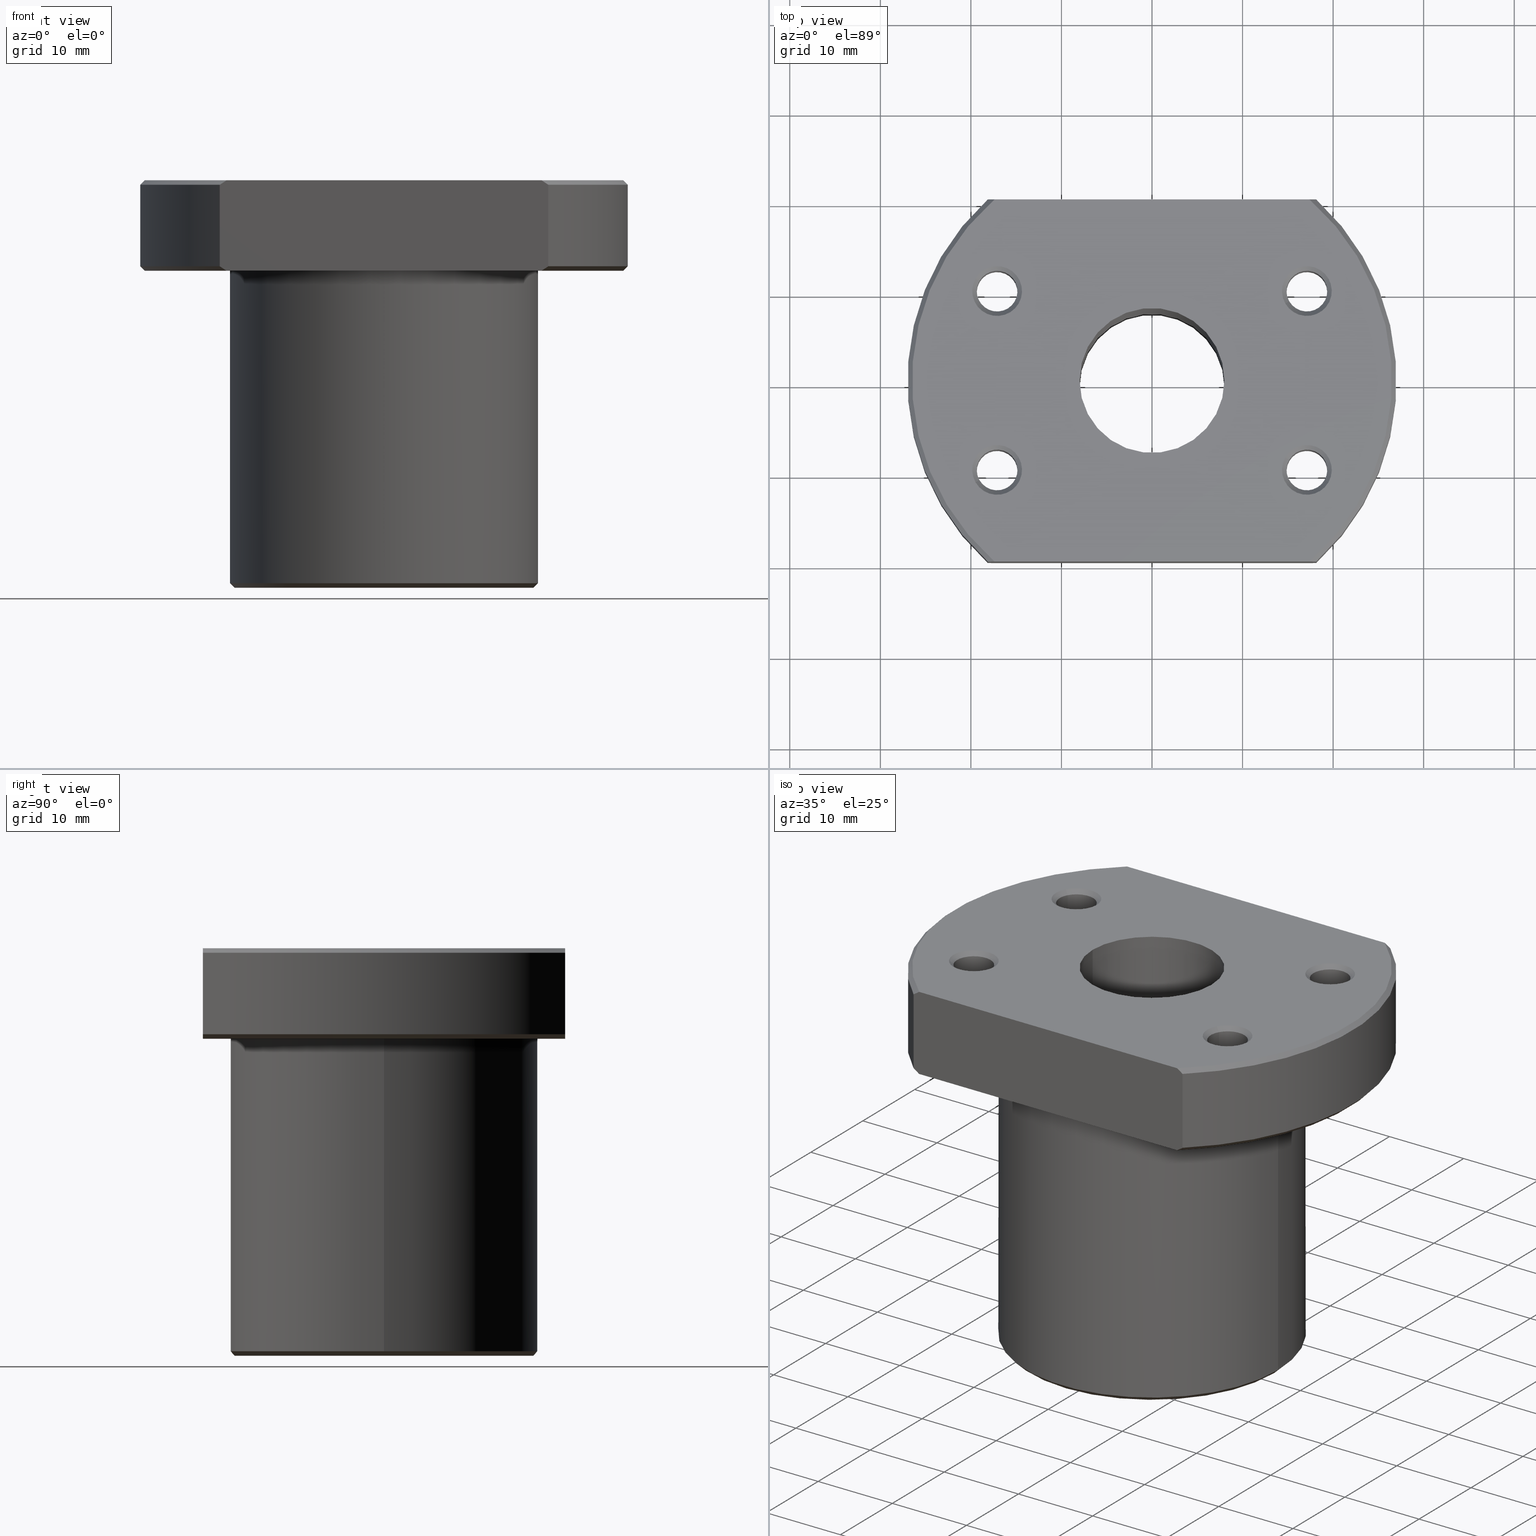
[diagram: canonical four-view strip — front | top / right | iso, engineering-drawing reading convention]
A machine part, canonical four-view strip (front | top / right | iso — engineering-drawing reading convention). The complete STEP part file that produces these views, byte-faithful:
ISO-10303-21;
HEADER;
FILE_DESCRIPTION(('CATIA V5 STEP Exchange'),'2;1');

FILE_NAME('C:\\Documents and Settings\\mycom\\\X2\BC14D0D5\X0\ \X2\D654BA74\X0\\\3D_CAD\\STEP\\STK (STEP)\\1605 STK\\1603-STK.stp','2006-12-14T04:33:39+00:00',('none'),('none'),'CATIA Version 5 Release 16 (IN-10)','CATIA V5 STEP AP214','none');

FILE_SCHEMA(('AUTOMOTIVE_DESIGN { 1 0 10303 214 1 1 1 1 }'));

ENDSEC;
/* file written by CATIA V5R16 */
DATA;
#5=PRODUCT('1603-STK','','',(#2)) ;
#2=PRODUCT_CONTEXT(' ',#1,'mechanical') ;
#1=APPLICATION_CONTEXT('automotive design') ;
#10=PRODUCT_DEFINITION(' ',' ',#6,#3) ;
#3=PRODUCT_DEFINITION_CONTEXT('part definition',#1,' ') ;
#11=PRODUCT_DEFINITION_SHAPE(' ',' ',#10) ;
#1237=MECHANICAL_DESIGN_GEOMETRIC_PRESENTATION_REPRESENTATION(' ',(#1215,#1234,#30),#17) ;
#20=SHAPE_REPRESENTATION(' ',(#19),#17) ;
#19=AXIS2_PLACEMENT_3D(' ',#18,$,$) ;
#35=AXIS2_PLACEMENT_3D('Cone Axis2P3D',#32,#33,#34) ;
#48=AXIS2_PLACEMENT_3D('Circle Axis2P3D',#46,#47,$) ;
#62=AXIS2_PLACEMENT_3D('Circle Axis2P3D',#60,#61,$) ;
#75=AXIS2_PLACEMENT_3D('Cone Axis2P3D',#72,#73,#74) ;
#79=AXIS2_PLACEMENT_3D('Circle Axis2P3D',#77,#78,$) ;
#84=AXIS2_PLACEMENT_3D('Circle Axis2P3D',#82,#83,$) ;
#97=AXIS2_PLACEMENT_3D('Cylinder Axis2P3D',#94,#95,#96) ;
#101=AXIS2_PLACEMENT_3D('Circle Axis2P3D',#99,#100,$) ;
#127=AXIS2_PLACEMENT_3D('Circle Axis2P3D',#125,#126,$) ;
#140=AXIS2_PLACEMENT_3D('Cone Axis2P3D',#137,#138,#139) ;
#151=AXIS2_PLACEMENT_3D('Circle Axis2P3D',#149,#150,$) ;
#171=AXIS2_PLACEMENT_3D('Cone Axis2P3D',#168,#169,#170) ;
#175=AXIS2_PLACEMENT_3D('Circle Axis2P3D',#173,#174,$) ;
#188=AXIS2_PLACEMENT_3D('Cone Axis2P3D',#185,#186,#187) ;
#201=AXIS2_PLACEMENT_3D('Circle Axis2P3D',#199,#200,$) ;
#215=AXIS2_PLACEMENT_3D('Circle Axis2P3D',#213,#214,$) ;
#228=AXIS2_PLACEMENT_3D('Cone Axis2P3D',#225,#226,#227) ;
#232=AXIS2_PLACEMENT_3D('Circle Axis2P3D',#230,#231,$) ;
#237=AXIS2_PLACEMENT_3D('Circle Axis2P3D',#235,#236,$) ;
#250=AXIS2_PLACEMENT_3D('Cylinder Axis2P3D',#247,#248,#249) ;
#254=AXIS2_PLACEMENT_3D('Circle Axis2P3D',#252,#253,$) ;
#280=AXIS2_PLACEMENT_3D('Circle Axis2P3D',#278,#279,$) ;
#293=AXIS2_PLACEMENT_3D('Cone Axis2P3D',#290,#291,#292) ;
#304=AXIS2_PLACEMENT_3D('Circle Axis2P3D',#302,#303,$) ;
#324=AXIS2_PLACEMENT_3D('Cone Axis2P3D',#321,#322,#323) ;
#328=AXIS2_PLACEMENT_3D('Circle Axis2P3D',#326,#327,$) ;
#341=AXIS2_PLACEMENT_3D('Cone Axis2P3D',#338,#339,#340) ;
#354=AXIS2_PLACEMENT_3D('Circle Axis2P3D',#352,#353,$) ;
#368=AXIS2_PLACEMENT_3D('Circle Axis2P3D',#366,#367,$) ;
#381=AXIS2_PLACEMENT_3D('Cone Axis2P3D',#378,#379,#380) ;
#385=AXIS2_PLACEMENT_3D('Circle Axis2P3D',#383,#384,$) ;
#390=AXIS2_PLACEMENT_3D('Circle Axis2P3D',#388,#389,$) ;
#403=AXIS2_PLACEMENT_3D('Cylinder Axis2P3D',#400,#401,#402) ;
#407=AXIS2_PLACEMENT_3D('Circle Axis2P3D',#405,#406,$) ;
#433=AXIS2_PLACEMENT_3D('Circle Axis2P3D',#431,#432,$) ;
#446=AXIS2_PLACEMENT_3D('Cone Axis2P3D',#443,#444,#445) ;
#457=AXIS2_PLACEMENT_3D('Circle Axis2P3D',#455,#456,$) ;
#477=AXIS2_PLACEMENT_3D('Cone Axis2P3D',#474,#475,#476) ;
#481=AXIS2_PLACEMENT_3D('Circle Axis2P3D',#479,#480,$) ;
#494=AXIS2_PLACEMENT_3D('Cone Axis2P3D',#491,#492,#493) ;
#507=AXIS2_PLACEMENT_3D('Circle Axis2P3D',#505,#506,$) ;
#521=AXIS2_PLACEMENT_3D('Circle Axis2P3D',#519,#520,$) ;
#534=AXIS2_PLACEMENT_3D('Cone Axis2P3D',#531,#532,#533) ;
#538=AXIS2_PLACEMENT_3D('Circle Axis2P3D',#536,#537,$) ;
#543=AXIS2_PLACEMENT_3D('Circle Axis2P3D',#541,#542,$) ;
#556=AXIS2_PLACEMENT_3D('Cylinder Axis2P3D',#553,#554,#555) ;
#560=AXIS2_PLACEMENT_3D('Circle Axis2P3D',#558,#559,$) ;
#586=AXIS2_PLACEMENT_3D('Circle Axis2P3D',#584,#585,$) ;
#599=AXIS2_PLACEMENT_3D('Cone Axis2P3D',#596,#597,#598) ;
#610=AXIS2_PLACEMENT_3D('Circle Axis2P3D',#608,#609,$) ;
#630=AXIS2_PLACEMENT_3D('Cone Axis2P3D',#627,#628,#629) ;
#634=AXIS2_PLACEMENT_3D('Circle Axis2P3D',#632,#633,$) ;
#647=AXIS2_PLACEMENT_3D('Cone Axis2P3D',#644,#645,#646) ;
#651=AXIS2_PLACEMENT_3D('Circle Axis2P3D',#649,#650,$) ;
#668=AXIS2_PLACEMENT_3D('Circle Axis2P3D',#666,#667,$) ;
#689=AXIS2_PLACEMENT_3D('Cylinder Axis2P3D',#686,#687,#688) ;
#707=AXIS2_PLACEMENT_3D('Circle Axis2P3D',#705,#706,$) ;
#720=AXIS2_PLACEMENT_3D('Cone Axis2P3D',#717,#718,#719) ;
#740=AXIS2_PLACEMENT_3D('Circle Axis2P3D',#738,#739,$) ;
#753=AXIS2_PLACEMENT_3D('Plane Axis2P3D',#750,#751,#752) ;
#771=AXIS2_PLACEMENT_3D('Circle Axis2P3D',#769,#770,$) ;
#798=AXIS2_PLACEMENT_3D('Circle Axis2P3D',#796,#797,$) ;
#807=AXIS2_PLACEMENT_3D('Circle Axis2P3D',#805,#806,$) ;
#818=AXIS2_PLACEMENT_3D('Cone Axis2P3D',#815,#816,#817) ;
#830=AXIS2_PLACEMENT_3D('Circle Axis2P3D',#828,#829,$) ;
#851=AXIS2_PLACEMENT_3D('Plane Axis2P3D',#848,#849,#850) ;
#855=AXIS2_PLACEMENT_3D('Circle Axis2P3D',#853,#854,$) ;
#880=AXIS2_PLACEMENT_3D('Circle Axis2P3D',#878,#879,$) ;
#887=AXIS2_PLACEMENT_3D('Circle Axis2P3D',#885,#886,$) ;
#892=AXIS2_PLACEMENT_3D('Circle Axis2P3D',#890,#891,$) ;
#897=AXIS2_PLACEMENT_3D('Circle Axis2P3D',#895,#896,$) ;
#904=AXIS2_PLACEMENT_3D('Circle Axis2P3D',#902,#903,$) ;
#909=AXIS2_PLACEMENT_3D('Circle Axis2P3D',#907,#908,$) ;
#932=AXIS2_PLACEMENT_3D('Cylinder Axis2P3D',#929,#930,#931) ;
#950=AXIS2_PLACEMENT_3D('Circle Axis2P3D',#948,#949,$) ;
#963=AXIS2_PLACEMENT_3D('Plane Axis2P3D',#960,#961,#962) ;
#987=AXIS2_PLACEMENT_3D('Plane Axis2P3D',#984,#985,#986) ;
#1011=AXIS2_PLACEMENT_3D('Cone Axis2P3D',#1008,#1009,#1010) ;
#1023=AXIS2_PLACEMENT_3D('Cylinder Axis2P3D',#1020,#1021,#1022) ;
#1041=AXIS2_PLACEMENT_3D('Circle Axis2P3D',#1039,#1040,$) ;
#1055=AXIS2_PLACEMENT_3D('Circle Axis2P3D',#1053,#1054,$) ;
#1070=AXIS2_PLACEMENT_3D('Cone Axis2P3D',#1067,#1068,#1069) ;
#1081=AXIS2_PLACEMENT_3D('Circle Axis2P3D',#1079,#1080,$) ;
#1101=AXIS2_PLACEMENT_3D('Cone Axis2P3D',#1098,#1099,#1100) ;
#1105=AXIS2_PLACEMENT_3D('Circle Axis2P3D',#1103,#1104,$) ;
#1118=AXIS2_PLACEMENT_3D('Cylinder Axis2P3D',#1115,#1116,#1117) ;
#1122=AXIS2_PLACEMENT_3D('Circle Axis2P3D',#1120,#1121,$) ;
#1148=AXIS2_PLACEMENT_3D('Circle Axis2P3D',#1146,#1147,$) ;
#1161=AXIS2_PLACEMENT_3D('Plane Axis2P3D',#1158,#1159,#1160) ;
#1169=AXIS2_PLACEMENT_3D('Circle Axis2P3D',#1167,#1168,$) ;
#1178=AXIS2_PLACEMENT_3D('Circle Axis2P3D',#1176,#1177,$) ;
#1189=AXIS2_PLACEMENT_3D('Cone Axis2P3D',#1186,#1187,#1188) ;
#1219=AXIS2_PLACEMENT_3D('Cone Axis2P3D',#1216,#1217,#1218) ;
#18=CARTESIAN_POINT(' ',(0.,0.,0.)) ;
#32=CARTESIAN_POINT('Axis2P3D Location',(-17.1040017247,9.875,37.75)) ;
#37=CARTESIAN_POINT('Line Origine',(-19.2690652342,11.125,35.25)) ;
#41=CARTESIAN_POINT('Vertex',(-19.4855715803,11.2500000085,35.)) ;
#43=CARTESIAN_POINT('Vertex',(-19.0525588833,11.,35.5)) ;
#46=CARTESIAN_POINT('Axis2P3D Location',(-17.1040017247,9.875,35.5)) ;
#50=CARTESIAN_POINT('Vertex',(-15.1554445662,8.75,35.5)) ;
#53=CARTESIAN_POINT('Line Origine',(-14.9389382153,8.625,35.25)) ;
#57=CARTESIAN_POINT('Vertex',(-14.7224318643,8.5,35.)) ;
#60=CARTESIAN_POINT('Axis2P3D Location',(-17.1040017247,9.875,35.)) ;
#72=CARTESIAN_POINT('Axis2P3D Location',(-17.1040017247,9.875,37.75)) ;
#77=CARTESIAN_POINT('Axis2P3D Location',(-17.1040017247,9.875,35.5)) ;
#82=CARTESIAN_POINT('Axis2P3D Location',(-17.1040017247,9.875,35.)) ;
#94=CARTESIAN_POINT('Axis2P3D Location',(-17.1040017247,9.875,40.)) ;
#99=CARTESIAN_POINT('Axis2P3D Location',(-17.1040017247,9.875,44.5)) ;
#103=CARTESIAN_POINT('Vertex',(-19.0525588833,11.,44.5)) ;
#105=CARTESIAN_POINT('Vertex',(-15.1554445662,8.75,44.5)) ;
#108=CARTESIAN_POINT('Line Origine',(-15.1554445662,8.75,40.)) ;
#113=CARTESIAN_POINT('Line Origine',(-19.0525588833,11.,40.)) ;
#125=CARTESIAN_POINT('Axis2P3D Location',(-17.1040017247,9.875,44.5)) ;
#137=CARTESIAN_POINT('Axis2P3D Location',(-17.1040017247,9.875,42.25)) ;
#142=CARTESIAN_POINT('Line Origine',(-19.269065407,11.1249997008,44.75)) ;
#146=CARTESIAN_POINT('Vertex',(-19.4855715803,11.2500000085,45.)) ;
#149=CARTESIAN_POINT('Axis2P3D Location',(-17.1040017247,9.875,45.)) ;
#153=CARTESIAN_POINT('Vertex',(-14.7224318643,8.5,45.)) ;
#156=CARTESIAN_POINT('Line Origine',(-14.9389382153,8.625,44.75)) ;
#168=CARTESIAN_POINT('Axis2P3D Location',(-17.1040017247,9.875,42.25)) ;
#173=CARTESIAN_POINT('Axis2P3D Location',(-17.1040017247,9.875,45.)) ;
#185=CARTESIAN_POINT('Axis2P3D Location',(17.1040017247,9.875,37.75)) ;
#190=CARTESIAN_POINT('Line Origine',(19.2690652342,11.125,35.25)) ;
#194=CARTESIAN_POINT('Vertex',(19.48557159,11.2499999915,35.)) ;
#196=CARTESIAN_POINT('Vertex',(19.0525588833,11.,35.5)) ;
#199=CARTESIAN_POINT('Axis2P3D Location',(17.1040017247,9.875,35.5)) ;
#203=CARTESIAN_POINT('Vertex',(15.1554445662,8.75,35.5)) ;
#206=CARTESIAN_POINT('Line Origine',(14.9389382153,8.625,35.25)) ;
#210=CARTESIAN_POINT('Vertex',(14.7224318643,8.5,35.)) ;
#213=CARTESIAN_POINT('Axis2P3D Location',(17.1040017247,9.875,35.)) ;
#225=CARTESIAN_POINT('Axis2P3D Location',(17.1040017247,9.875,37.75)) ;
#230=CARTESIAN_POINT('Axis2P3D Location',(17.1040017247,9.875,35.5)) ;
#235=CARTESIAN_POINT('Axis2P3D Location',(17.1040017247,9.875,35.)) ;
#247=CARTESIAN_POINT('Axis2P3D Location',(17.1040017247,9.875,40.)) ;
#252=CARTESIAN_POINT('Axis2P3D Location',(17.1040017247,9.875,44.5)) ;
#256=CARTESIAN_POINT('Vertex',(19.0525588833,11.,44.5)) ;
#258=CARTESIAN_POINT('Vertex',(15.1554445662,8.75,44.5)) ;
#261=CARTESIAN_POINT('Line Origine',(15.1554445662,8.75,40.)) ;
#266=CARTESIAN_POINT('Line Origine',(19.0525588833,11.,40.)) ;
#278=CARTESIAN_POINT('Axis2P3D Location',(17.1040017247,9.875,44.5)) ;
#290=CARTESIAN_POINT('Axis2P3D Location',(17.1040017247,9.875,42.25)) ;
#295=CARTESIAN_POINT('Line Origine',(19.2690650614,11.1250002992,44.75)) ;
#299=CARTESIAN_POINT('Vertex',(19.48557159,11.2499999915,45.)) ;
#302=CARTESIAN_POINT('Axis2P3D Location',(17.1040017247,9.875,45.)) ;
#306=CARTESIAN_POINT('Vertex',(14.7224318643,8.5,45.)) ;
#309=CARTESIAN_POINT('Line Origine',(14.9389382153,8.625,44.75)) ;
#321=CARTESIAN_POINT('Axis2P3D Location',(17.1040017247,9.875,42.25)) ;
#326=CARTESIAN_POINT('Axis2P3D Location',(17.1040017247,9.875,45.)) ;
#338=CARTESIAN_POINT('Axis2P3D Location',(17.1040017247,-9.875,37.75)) ;
#343=CARTESIAN_POINT('Line Origine',(19.2690652342,-11.125,35.25)) ;
#347=CARTESIAN_POINT('Vertex',(19.4855715803,-11.2500000085,35.)) ;
#349=CARTESIAN_POINT('Vertex',(19.0525588833,-11.,35.5)) ;
#352=CARTESIAN_POINT('Axis2P3D Location',(17.1040017247,-9.875,35.5)) ;
#356=CARTESIAN_POINT('Vertex',(15.1554445662,-8.75,35.5)) ;
#359=CARTESIAN_POINT('Line Origine',(14.9389382153,-8.625,35.25)) ;
#363=CARTESIAN_POINT('Vertex',(14.7224318643,-8.5,35.)) ;
#366=CARTESIAN_POINT('Axis2P3D Location',(17.1040017247,-9.875,35.)) ;
#378=CARTESIAN_POINT('Axis2P3D Location',(17.1040017247,-9.875,37.75)) ;
#383=CARTESIAN_POINT('Axis2P3D Location',(17.1040017247,-9.875,35.5)) ;
#388=CARTESIAN_POINT('Axis2P3D Location',(17.1040017247,-9.875,35.)) ;
#400=CARTESIAN_POINT('Axis2P3D Location',(17.1040017247,-9.875,40.)) ;
#405=CARTESIAN_POINT('Axis2P3D Location',(17.1040017247,-9.875,44.5)) ;
#409=CARTESIAN_POINT('Vertex',(19.0525588833,-11.,44.5)) ;
#411=CARTESIAN_POINT('Vertex',(15.1554445662,-8.75,44.5)) ;
#414=CARTESIAN_POINT('Line Origine',(15.1554445662,-8.75,40.)) ;
#419=CARTESIAN_POINT('Line Origine',(19.0525588833,-11.,40.)) ;
#431=CARTESIAN_POINT('Axis2P3D Location',(17.1040017247,-9.875,44.5)) ;
#443=CARTESIAN_POINT('Axis2P3D Location',(17.1040017247,-9.875,42.25)) ;
#448=CARTESIAN_POINT('Line Origine',(19.269065407,-11.1249997008,44.75)) ;
#452=CARTESIAN_POINT('Vertex',(19.4855715803,-11.2500000085,45.)) ;
#455=CARTESIAN_POINT('Axis2P3D Location',(17.1040017247,-9.875,45.)) ;
#459=CARTESIAN_POINT('Vertex',(14.7224318643,-8.5,45.)) ;
#462=CARTESIAN_POINT('Line Origine',(14.9389382153,-8.625,44.75)) ;
#474=CARTESIAN_POINT('Axis2P3D Location',(17.1040017247,-9.875,42.25)) ;
#479=CARTESIAN_POINT('Axis2P3D Location',(17.1040017247,-9.875,45.)) ;
#491=CARTESIAN_POINT('Axis2P3D Location',(-17.1040017247,-9.875,37.75)) ;
#496=CARTESIAN_POINT('Line Origine',(-19.2690652342,-11.125,35.25)) ;
#500=CARTESIAN_POINT('Vertex',(-19.48557159,-11.2499999915,35.)) ;
#502=CARTESIAN_POINT('Vertex',(-19.0525588833,-11.,35.5)) ;
#505=CARTESIAN_POINT('Axis2P3D Location',(-17.1040017247,-9.875,35.5)) ;
#509=CARTESIAN_POINT('Vertex',(-15.1554445662,-8.75,35.5)) ;
#512=CARTESIAN_POINT('Line Origine',(-14.9389382153,-8.625,35.25)) ;
#516=CARTESIAN_POINT('Vertex',(-14.7224318643,-8.5,35.)) ;
#519=CARTESIAN_POINT('Axis2P3D Location',(-17.1040017247,-9.875,35.)) ;
#531=CARTESIAN_POINT('Axis2P3D Location',(-17.1040017247,-9.875,37.75)) ;
#536=CARTESIAN_POINT('Axis2P3D Location',(-17.1040017247,-9.875,35.5)) ;
#541=CARTESIAN_POINT('Axis2P3D Location',(-17.1040017247,-9.875,35.)) ;
#553=CARTESIAN_POINT('Axis2P3D Location',(-17.1040017247,-9.875,40.)) ;
#558=CARTESIAN_POINT('Axis2P3D Location',(-17.1040017247,-9.875,44.5)) ;
#562=CARTESIAN_POINT('Vertex',(-19.0525588833,-11.,44.5)) ;
#564=CARTESIAN_POINT('Vertex',(-15.1554445662,-8.75,44.5)) ;
#567=CARTESIAN_POINT('Line Origine',(-15.1554445662,-8.75,40.)) ;
#572=CARTESIAN_POINT('Line Origine',(-19.0525588833,-11.,40.)) ;
#584=CARTESIAN_POINT('Axis2P3D Location',(-17.1040017247,-9.875,44.5)) ;
#596=CARTESIAN_POINT('Axis2P3D Location',(-17.1040017247,-9.875,42.25)) ;
#601=CARTESIAN_POINT('Line Origine',(-19.2690650614,-11.1250002992,44.75)) ;
#605=CARTESIAN_POINT('Vertex',(-19.48557159,-11.2499999915,45.)) ;
#608=CARTESIAN_POINT('Axis2P3D Location',(-17.1040017247,-9.875,45.)) ;
#612=CARTESIAN_POINT('Vertex',(-14.7224318643,-8.5,45.)) ;
#615=CARTESIAN_POINT('Line Origine',(-14.9389382153,-8.625,44.75)) ;
#627=CARTESIAN_POINT('Axis2P3D Location',(-17.1040017247,-9.875,42.25)) ;
#632=CARTESIAN_POINT('Axis2P3D Location',(-17.1040017247,-9.875,45.)) ;
#644=CARTESIAN_POINT('Axis2P3D Location',(-1.91846538655E-013,9.84869320164E-014,71.5)) ;
#649=CARTESIAN_POINT('Axis2P3D Location',(-3.5527136788E-015,2.18640584506E-015,45.)) ;
#653=CARTESIAN_POINT('Vertex',(17.3853386507,-20.,45.)) ;
#655=CARTESIAN_POINT('Vertex',(17.3853386507,20.,45.)) ;
#659=CARTESIAN_POINT('Control Point',(18.1383571472,-20.,44.5)) ;
#660=CARTESIAN_POINT('Control Point',(17.8841121369,-20.,44.6707995111)) ;
#661=CARTESIAN_POINT('Control Point',(17.6331265351,-20.000000396,44.8374383362)) ;
#662=CARTESIAN_POINT('Control Point',(17.3853381951,-20.000000396,45.)) ;
#663=CARTESIAN_POINT('Vertex',(18.1383571472,-20.,44.5)) ;
#666=CARTESIAN_POINT('Axis2P3D Location',(-8.83524213848E-028,3.69414785221E-016,44.5)) ;
#670=CARTESIAN_POINT('Vertex',(18.1383571472,20.,44.5)) ;
#674=CARTESIAN_POINT('Control Point',(18.1383571472,20.,44.5)) ;
#675=CARTESIAN_POINT('Control Point',(17.8841123523,20.,44.6707993664)) ;
#676=CARTESIAN_POINT('Control Point',(17.633126791,19.9999999938,44.8374384675)) ;
#677=CARTESIAN_POINT('Control Point',(17.3853386578,19.9999999938,45.)) ;
#686=CARTESIAN_POINT('Axis2P3D Location',(0.,0.,40.)) ;
#691=CARTESIAN_POINT('Line Origine',(18.1383571472,20.,40.)) ;
#695=CARTESIAN_POINT('Vertex',(18.1383571472,20.,35.5)) ;
#698=CARTESIAN_POINT('Line Origine',(18.1383571472,-20.,40.)) ;
#702=CARTESIAN_POINT('Vertex',(18.1383571472,-20.,35.5)) ;
#705=CARTESIAN_POINT('Axis2P3D Location',(0.,0.,35.5)) ;
#717=CARTESIAN_POINT('Axis2P3D Location',(-1.91846538655E-013,9.84869320164E-014,8.5)) ;
#723=CARTESIAN_POINT('Control Point',(18.1383571346,20.0000000115,35.5)) ;
#724=CARTESIAN_POINT('Control Point',(17.8841123423,20.0000000115,35.3292006355)) ;
#725=CARTESIAN_POINT('Control Point',(17.6331267813,20.,35.1625615307)) ;
#726=CARTESIAN_POINT('Control Point',(17.3853386507,20.,35.)) ;
#727=CARTESIAN_POINT('Vertex',(17.3853386507,20.,35.)) ;
#731=CARTESIAN_POINT('Control Point',(18.1383575973,-19.9999995918,35.5)) ;
#732=CARTESIAN_POINT('Control Point',(17.8841125865,-19.9999995918,35.3292004843)) ;
#733=CARTESIAN_POINT('Control Point',(17.6331269912,-20.,35.1625616684)) ;
#734=CARTESIAN_POINT('Control Point',(17.3853386507,-20.,35.)) ;
#735=CARTESIAN_POINT('Vertex',(17.3853386507,-20.,35.)) ;
#738=CARTESIAN_POINT('Axis2P3D Location',(-3.5527136788E-015,2.18640584506E-015,35.)) ;
#750=CARTESIAN_POINT('Axis2P3D Location',(0.,0.,45.)) ;
#755=CARTESIAN_POINT('Line Origine',(-7.1054273576E-015,-20.,45.)) ;
#759=CARTESIAN_POINT('Vertex',(-17.3853386507,-20.,45.)) ;
#762=CARTESIAN_POINT('Line Origine',(0.,20.,45.)) ;
#766=CARTESIAN_POINT('Vertex',(-17.3853386507,20.,45.)) ;
#769=CARTESIAN_POINT('Axis2P3D Location',(-7.1054273576E-015,-2.58813730639E-015,45.)) ;
#796=CARTESIAN_POINT('Axis2P3D Location',(0.,0.,45.)) ;
#800=CARTESIAN_POINT('Vertex',(-8.,9.79685083058E-016,45.)) ;
#802=CARTESIAN_POINT('Vertex',(8.,0.,45.)) ;
#805=CARTESIAN_POINT('Axis2P3D Location',(0.,0.,45.)) ;
#815=CARTESIAN_POINT('Axis2P3D Location',(7.56728013585E-013,-2.75161189411E-014,71.5)) ;
#821=CARTESIAN_POINT('Control Point',(-18.1383571472,20.,44.5)) ;
#822=CARTESIAN_POINT('Control Point',(-17.8841121369,20.,44.6707995111)) ;
#823=CARTESIAN_POINT('Control Point',(-17.6331265351,20.000000396,44.8374383362)) ;
#824=CARTESIAN_POINT('Control Point',(-17.3853381951,20.000000396,45.)) ;
#825=CARTESIAN_POINT('Vertex',(-18.1383571472,20.,44.5)) ;
#828=CARTESIAN_POINT('Axis2P3D Location',(-1.06581410364E-014,-5.67227471591E-016,44.5)) ;
#832=CARTESIAN_POINT('Vertex',(-18.1383571472,-20.,44.5)) ;
#836=CARTESIAN_POINT('Control Point',(-18.1383571472,-20.,44.5)) ;
#837=CARTESIAN_POINT('Control Point',(-17.8841123523,-20.,44.6707993664)) ;
#838=CARTESIAN_POINT('Control Point',(-17.633126791,-19.9999999938,44.8374384675)) ;
#839=CARTESIAN_POINT('Control Point',(-17.3853386578,-19.9999999938,45.)) ;
#848=CARTESIAN_POINT('Axis2P3D Location',(0.,0.,35.)) ;
#853=CARTESIAN_POINT('Axis2P3D Location',(-7.1054273576E-015,-2.58813730639E-015,35.)) ;
#857=CARTESIAN_POINT('Vertex',(-17.3853386507,20.,35.)) ;
#859=CARTESIAN_POINT('Vertex',(-17.3853386507,-20.,35.)) ;
#862=CARTESIAN_POINT('Line Origine',(0.,20.,35.)) ;
#867=CARTESIAN_POINT('Line Origine',(-7.1054273576E-015,-20.,35.)) ;
#878=CARTESIAN_POINT('Axis2P3D Location',(0.,0.,35.)) ;
#882=CARTESIAN_POINT('Vertex',(-17.,2.0818308015E-015,35.)) ;
#885=CARTESIAN_POINT('Axis2P3D Location',(0.,0.,35.)) ;
#890=CARTESIAN_POINT('Axis2P3D Location',(0.,0.,35.)) ;
#895=CARTESIAN_POINT('Axis2P3D Location',(0.,0.,35.)) ;
#899=CARTESIAN_POINT('Vertex',(17.,0.,35.)) ;
#902=CARTESIAN_POINT('Axis2P3D Location',(0.,0.,35.)) ;
#907=CARTESIAN_POINT('Axis2P3D Location',(0.,0.,35.)) ;
#929=CARTESIAN_POINT('Axis2P3D Location',(0.,0.,40.)) ;
#934=CARTESIAN_POINT('Line Origine',(-18.1383571472,-20.,40.)) ;
#938=CARTESIAN_POINT('Vertex',(-18.1383571472,-20.,35.5)) ;
#941=CARTESIAN_POINT('Line Origine',(-18.1383571472,20.,40.)) ;
#945=CARTESIAN_POINT('Vertex',(-18.1383571472,20.,35.5)) ;
#948=CARTESIAN_POINT('Axis2P3D Location',(0.,0.,35.5)) ;
#960=CARTESIAN_POINT('Axis2P3D Location',(-18.1383571472,20.,35.)) ;
#966=CARTESIAN_POINT('Control Point',(-18.1383571472,20.,35.5)) ;
#967=CARTESIAN_POINT('Control Point',(-17.9858101407,20.,35.3975202906)) ;
#968=CARTESIAN_POINT('Control Point',(-17.8342452118,20.,35.2962914659)) ;
#969=CARTESIAN_POINT('Control Point',(-17.683639002,20.,35.1962939767)) ;
#970=CARTESIAN_POINT('Control Point',(-17.534011655,20.,35.0975370011)) ;
#971=CARTESIAN_POINT('Control Point',(-17.3853386507,20.,35.)) ;
#984=CARTESIAN_POINT('Axis2P3D Location',(-18.1383571472,-20.,35.)) ;
#990=CARTESIAN_POINT('Control Point',(-18.1383571472,-20.,35.5)) ;
#991=CARTESIAN_POINT('Control Point',(-17.9858102719,-20.,35.3975203813)) ;
#992=CARTESIAN_POINT('Control Point',(-17.8342454724,-20.,35.2962916452)) ;
#993=CARTESIAN_POINT('Control Point',(-17.6836387485,-20.,35.1962938093)) ;
#994=CARTESIAN_POINT('Control Point',(-17.5340115291,-20.,35.0975369184)) ;
#995=CARTESIAN_POINT('Control Point',(-17.3853386507,-20.,35.)) ;
#1008=CARTESIAN_POINT('Axis2P3D Location',(7.56728013585E-013,-2.75161189411E-014,8.5)) ;
#1020=CARTESIAN_POINT('Axis2P3D Location',(0.,0.,17.5)) ;
#1025=CARTESIAN_POINT('Line Origine',(-17.,2.0818308015E-015,17.5)) ;
#1029=CARTESIAN_POINT('Vertex',(-17.,2.0818308015E-015,0.5)) ;
#1032=CARTESIAN_POINT('Line Origine',(17.,0.,17.5)) ;
#1036=CARTESIAN_POINT('Vertex',(17.,-4.163661603E-015,0.5)) ;
#1039=CARTESIAN_POINT('Axis2P3D Location',(0.,0.,0.5)) ;
#1053=CARTESIAN_POINT('Axis2P3D Location',(0.,0.,0.5)) ;
#1067=CARTESIAN_POINT('Axis2P3D Location',(1.13464793117E-013,-1.172395514E-013,-16.5)) ;
#1072=CARTESIAN_POINT('Line Origine',(16.75,2.8329611384E-015,0.25)) ;
#1076=CARTESIAN_POINT('Vertex',(16.5,-4.48810910311E-015,0.)) ;
#1079=CARTESIAN_POINT('Axis2P3D Location',(3.5527136788E-015,-8.07793566946E-028,-1.13686837722E-013)) ;
#1083=CARTESIAN_POINT('Vertex',(-16.5,-9.12436646239E-009,0.)) ;
#1086=CARTESIAN_POINT('Line Origine',(-16.75,-9.26260759568E-009,0.25)) ;
#1098=CARTESIAN_POINT('Axis2P3D Location',(8.70414851306E-014,2.3625545964E-013,-16.5)) ;
#1103=CARTESIAN_POINT('Axis2P3D Location',(-8.881784197E-016,1.7763568394E-015,-2.84217094304E-014)) ;
#1115=CARTESIAN_POINT('Axis2P3D Location',(0.,0.,17.5)) ;
#1120=CARTESIAN_POINT('Axis2P3D Location',(0.,0.,0.5)) ;
#1124=CARTESIAN_POINT('Vertex',(8.,-1.95937016612E-015,0.5)) ;
#1126=CARTESIAN_POINT('Vertex',(-8.,9.79685083058E-016,0.5)) ;
#1129=CARTESIAN_POINT('Line Origine',(8.,0.,35.)) ;
#1134=CARTESIAN_POINT('Line Origine',(-8.,9.79685083058E-016,35.)) ;
#1146=CARTESIAN_POINT('Axis2P3D Location',(0.,0.,0.5)) ;
#1158=CARTESIAN_POINT('Axis2P3D Location',(0.,0.,0.)) ;
#1167=CARTESIAN_POINT('Axis2P3D Location',(1.7763568394E-015,4.4408920985E-016,0.)) ;
#1171=CARTESIAN_POINT('Vertex',(-8.5,1.51718430416E-007,0.)) ;
#1173=CARTESIAN_POINT('Vertex',(8.5,-1.63774159165E-015,0.)) ;
#1176=CARTESIAN_POINT('Axis2P3D Location',(0.,0.,0.)) ;
#1186=CARTESIAN_POINT('Axis2P3D Location',(-1.04836317973E-016,0.,8.5)) ;
#1191=CARTESIAN_POINT('Line Origine',(-8.25,-4.4408920985E-016,0.25)) ;
#1196=CARTESIAN_POINT('Line Origine',(8.25,4.4408920985E-016,0.25)) ;
#1216=CARTESIAN_POINT('Axis2P3D Location',(3.15303338994E-014,-1.50990331349E-014,8.5)) ;
#33=DIRECTION('Axis2P3D Direction',(-7.81597009336E-014,-1.45661260831E-013,-1.)) ;
#34=DIRECTION('Axis2P3D XDirection',(-0.620941479101,0.783856925422,-6.57227418967E-014)) ;
#38=DIRECTION('Vector Direction',(-0.612372435696,0.353553390593,-0.707106781187)) ;
#47=DIRECTION('Axis2P3D Direction',(1.18921396731E-013,9.42049825527E-014,1.)) ;
#54=DIRECTION('Vector Direction',(0.612372435696,-0.353553390593,-0.707106781187)) ;
#61=DIRECTION('Axis2P3D Direction',(1.18921396731E-013,9.42049825527E-014,1.)) ;
#73=DIRECTION('Axis2P3D Direction',(0.,0.,-1.)) ;
#74=DIRECTION('Axis2P3D XDirection',(0.866025403784,-0.5,0.)) ;
#78=DIRECTION('Axis2P3D Direction',(0.,0.,1.)) ;
#83=DIRECTION('Axis2P3D Direction',(0.,0.,1.)) ;
#95=DIRECTION('Axis2P3D Direction',(0.,0.,1.)) ;
#96=DIRECTION('Axis2P3D XDirection',(0.866025403784,-0.5,0.)) ;
#100=DIRECTION('Axis2P3D Direction',(0.,0.,1.)) ;
#109=DIRECTION('Vector Direction',(0.,0.,1.)) ;
#114=DIRECTION('Vector Direction',(0.,0.,1.)) ;
#126=DIRECTION('Axis2P3D Direction',(0.,0.,1.)) ;
#138=DIRECTION('Axis2P3D Direction',(-7.81597009336E-014,-1.45661260831E-013,1.)) ;
#139=DIRECTION('Axis2P3D XDirection',(-0.620941479101,0.783856925422,6.57227418967E-014)) ;
#143=DIRECTION('Vector Direction',(-0.612372484559,0.35355330596,0.707106781187)) ;
#150=DIRECTION('Axis2P3D Direction',(-1.18921396731E-013,-9.42049825527E-014,1.)) ;
#157=DIRECTION('Vector Direction',(0.612372435696,-0.353553390593,0.707106781187)) ;
#169=DIRECTION('Axis2P3D Direction',(0.,-3.5527136788E-015,1.)) ;
#170=DIRECTION('Axis2P3D XDirection',(0.866025403784,-0.5,-1.71221572076E-015)) ;
#174=DIRECTION('Axis2P3D Direction',(-1.53837014911E-015,-2.6645352591E-015,1.)) ;
#186=DIRECTION('Axis2P3D Direction',(-8.52651282912E-014,1.42108547152E-013,-1.)) ;
#187=DIRECTION('Axis2P3D XDirection',(0.989310749898,0.145822632454,-6.36153994711E-014)) ;
#191=DIRECTION('Vector Direction',(0.612372435696,0.353553390593,-0.707106781187)) ;
#200=DIRECTION('Axis2P3D Direction',(2.23142310953E-014,-1.51387396639E-013,1.)) ;
#207=DIRECTION('Vector Direction',(-0.612372435696,-0.353553390593,-0.707106781187)) ;
#214=DIRECTION('Axis2P3D Direction',(2.23142310953E-014,-1.51387396639E-013,1.)) ;
#226=DIRECTION('Axis2P3D Direction',(0.,0.,-1.)) ;
#227=DIRECTION('Axis2P3D XDirection',(-0.866025403784,-0.5,0.)) ;
#231=DIRECTION('Axis2P3D Direction',(0.,0.,1.)) ;
#236=DIRECTION('Axis2P3D Direction',(0.,0.,1.)) ;
#248=DIRECTION('Axis2P3D Direction',(0.,0.,1.)) ;
#249=DIRECTION('Axis2P3D XDirection',(-0.866025403784,-0.5,0.)) ;
#253=DIRECTION('Axis2P3D Direction',(0.,0.,1.)) ;
#262=DIRECTION('Vector Direction',(0.,0.,1.)) ;
#267=DIRECTION('Vector Direction',(0.,0.,1.)) ;
#279=DIRECTION('Axis2P3D Direction',(0.,0.,1.)) ;
#291=DIRECTION('Axis2P3D Direction',(-8.52651282912E-014,1.42108547152E-013,1.)) ;
#292=DIRECTION('Axis2P3D XDirection',(0.989310749898,0.145822632454,6.36153994711E-014)) ;
#296=DIRECTION('Vector Direction',(0.612372386833,0.353553475227,0.707106781187)) ;
#303=DIRECTION('Axis2P3D Direction',(-2.23142310953E-014,1.51387396639E-013,1.)) ;
#310=DIRECTION('Vector Direction',(-0.612372435696,-0.353553390593,0.707106781187)) ;
#322=DIRECTION('Axis2P3D Direction',(0.,0.,1.)) ;
#323=DIRECTION('Axis2P3D XDirection',(-0.866025403784,-0.5,0.)) ;
#327=DIRECTION('Axis2P3D Direction',(0.,0.,1.)) ;
#339=DIRECTION('Axis2P3D Direction',(7.81597009336E-014,1.4921397451E-013,-1.)) ;
#340=DIRECTION('Axis2P3D XDirection',(0.620941479101,-0.783856925422,-6.84886288302E-014)) ;
#344=DIRECTION('Vector Direction',(0.612372435696,-0.353553390593,-0.707106781187)) ;
#353=DIRECTION('Axis2P3D Direction',(-1.20650606498E-013,-9.5574796399E-014,1.)) ;
#360=DIRECTION('Vector Direction',(-0.612372435696,0.353553390593,-0.707106781187)) ;
#367=DIRECTION('Axis2P3D Direction',(-1.20650606498E-013,-9.5574796399E-014,1.)) ;
#379=DIRECTION('Axis2P3D Direction',(0.,-3.5527136788E-015,-1.)) ;
#380=DIRECTION('Axis2P3D XDirection',(-0.866025403784,0.5,-1.71221572076E-015)) ;
#384=DIRECTION('Axis2P3D Direction',(1.53837014911E-015,2.6645352591E-015,1.)) ;
#389=DIRECTION('Axis2P3D Direction',(1.53837014911E-015,2.6645352591E-015,1.)) ;
#401=DIRECTION('Axis2P3D Direction',(0.,0.,1.)) ;
#402=DIRECTION('Axis2P3D XDirection',(-0.866025403784,0.5,0.)) ;
#406=DIRECTION('Axis2P3D Direction',(0.,0.,1.)) ;
#415=DIRECTION('Vector Direction',(0.,0.,1.)) ;
#420=DIRECTION('Vector Direction',(0.,0.,1.)) ;
#432=DIRECTION('Axis2P3D Direction',(0.,0.,1.)) ;
#444=DIRECTION('Axis2P3D Direction',(7.81597009336E-014,1.4921397451E-013,1.)) ;
#445=DIRECTION('Axis2P3D XDirection',(0.620941479101,-0.783856925422,6.84886288302E-014)) ;
#449=DIRECTION('Vector Direction',(0.612372484559,-0.35355330596,0.707106781187)) ;
#456=DIRECTION('Axis2P3D Direction',(1.20650606498E-013,9.5574796399E-014,1.)) ;
#463=DIRECTION('Vector Direction',(-0.612372435696,0.353553390593,0.707106781187)) ;
#475=DIRECTION('Axis2P3D Direction',(0.,-3.5527136788E-015,1.)) ;
#476=DIRECTION('Axis2P3D XDirection',(-0.866025403784,0.5,1.71221572076E-015)) ;
#480=DIRECTION('Axis2P3D Direction',(-1.53837014911E-015,-2.6645352591E-015,1.)) ;
#492=DIRECTION('Axis2P3D Direction',(8.52651282912E-014,-1.42108547152E-013,-1.)) ;
#493=DIRECTION('Axis2P3D XDirection',(-0.989310749898,-0.145822632454,-6.36153994711E-014)) ;
#497=DIRECTION('Vector Direction',(-0.612372435696,-0.353553390593,-0.707106781187)) ;
#506=DIRECTION('Axis2P3D Direction',(-2.23142310953E-014,1.51387396639E-013,1.)) ;
#513=DIRECTION('Vector Direction',(0.612372435696,0.353553390593,-0.707106781187)) ;
#520=DIRECTION('Axis2P3D Direction',(-2.23142310953E-014,1.51387396639E-013,1.)) ;
#532=DIRECTION('Axis2P3D Direction',(0.,0.,-1.)) ;
#533=DIRECTION('Axis2P3D XDirection',(0.866025403784,0.5,0.)) ;
#537=DIRECTION('Axis2P3D Direction',(0.,0.,1.)) ;
#542=DIRECTION('Axis2P3D Direction',(0.,0.,1.)) ;
#554=DIRECTION('Axis2P3D Direction',(0.,0.,1.)) ;
#555=DIRECTION('Axis2P3D XDirection',(0.866025403784,0.5,0.)) ;
#559=DIRECTION('Axis2P3D Direction',(0.,0.,1.)) ;
#568=DIRECTION('Vector Direction',(0.,0.,1.)) ;
#573=DIRECTION('Vector Direction',(0.,0.,1.)) ;
#585=DIRECTION('Axis2P3D Direction',(0.,0.,1.)) ;
#597=DIRECTION('Axis2P3D Direction',(8.52651282912E-014,-1.42108547152E-013,1.)) ;
#598=DIRECTION('Axis2P3D XDirection',(-0.989310749898,-0.145822632454,6.36153994711E-014)) ;
#602=DIRECTION('Vector Direction',(-0.612372386833,-0.353553475227,0.707106781187)) ;
#609=DIRECTION('Axis2P3D Direction',(2.23142310953E-014,-1.51387396639E-013,1.)) ;
#616=DIRECTION('Vector Direction',(0.612372435696,0.353553390593,0.707106781187)) ;
#628=DIRECTION('Axis2P3D Direction',(0.,0.,1.)) ;
#629=DIRECTION('Axis2P3D XDirection',(0.866025403784,0.5,0.)) ;
#633=DIRECTION('Axis2P3D Direction',(0.,0.,1.)) ;
#645=DIRECTION('Axis2P3D Direction',(7.1054273576E-015,-3.63398211967E-015,-1.)) ;
#646=DIRECTION('Axis2P3D XDirection',(-0.90238567051,-0.430929346481,-4.87322935907E-015)) ;
#650=DIRECTION('Axis2P3D Direction',(-2.73260510366E-015,5.72219949474E-015,1.)) ;
#667=DIRECTION('Axis2P3D Direction',(-2.73260510366E-015,5.72219949474E-015,1.)) ;
#687=DIRECTION('Axis2P3D Direction',(0.,0.,1.)) ;
#688=DIRECTION('Axis2P3D XDirection',(0.671791005452,-0.740740740741,0.)) ;
#692=DIRECTION('Vector Direction',(0.,0.,1.)) ;
#699=DIRECTION('Vector Direction',(0.,0.,1.)) ;
#706=DIRECTION('Axis2P3D Direction',(0.,0.,1.)) ;
#718=DIRECTION('Axis2P3D Direction',(7.1054273576E-015,-3.63398211967E-015,1.)) ;
#719=DIRECTION('Axis2P3D XDirection',(-0.90238567051,-0.430929346481,4.87322935907E-015)) ;
#739=DIRECTION('Axis2P3D Direction',(2.73260510366E-015,-5.72219949474E-015,1.)) ;
#751=DIRECTION('Axis2P3D Direction',(0.,0.,1.)) ;
#752=DIRECTION('Axis2P3D XDirection',(1.,0.,0.)) ;
#756=DIRECTION('Vector Direction',(1.,0.,0.)) ;
#763=DIRECTION('Vector Direction',(1.,0.,0.)) ;
#770=DIRECTION('Axis2P3D Direction',(0.,0.,1.)) ;
#797=DIRECTION('Axis2P3D Direction',(0.,0.,1.)) ;
#806=DIRECTION('Axis2P3D Direction',(0.,0.,1.)) ;
#816=DIRECTION('Axis2P3D Direction',(-2.84217094304E-014,9.98107091463E-016,-1.)) ;
#817=DIRECTION('Axis2P3D XDirection',(0.902385670488,0.430929346526,-2.52881091065E-014)) ;
#829=DIRECTION('Axis2P3D Direction',(5.66604271408E-015,-1.18649514004E-014,1.)) ;
#849=DIRECTION('Axis2P3D Direction',(0.,0.,1.)) ;
#850=DIRECTION('Axis2P3D XDirection',(1.,0.,0.)) ;
#854=DIRECTION('Axis2P3D Direction',(0.,0.,1.)) ;
#863=DIRECTION('Vector Direction',(1.,0.,0.)) ;
#868=DIRECTION('Vector Direction',(1.,0.,0.)) ;
#879=DIRECTION('Axis2P3D Direction',(0.,0.,1.)) ;
#886=DIRECTION('Axis2P3D Direction',(0.,0.,1.)) ;
#891=DIRECTION('Axis2P3D Direction',(0.,0.,1.)) ;
#896=DIRECTION('Axis2P3D Direction',(0.,0.,1.)) ;
#903=DIRECTION('Axis2P3D Direction',(0.,0.,1.)) ;
#908=DIRECTION('Axis2P3D Direction',(0.,0.,1.)) ;
#930=DIRECTION('Axis2P3D Direction',(0.,0.,1.)) ;
#931=DIRECTION('Axis2P3D XDirection',(-0.671791005452,0.740740740741,0.)) ;
#935=DIRECTION('Vector Direction',(0.,0.,1.)) ;
#942=DIRECTION('Vector Direction',(0.,0.,1.)) ;
#949=DIRECTION('Axis2P3D Direction',(0.,0.,1.)) ;
#961=DIRECTION('Axis2P3D Direction',(0.,-1.,0.)) ;
#962=DIRECTION('Axis2P3D XDirection',(1.,0.,0.)) ;
#985=DIRECTION('Axis2P3D Direction',(0.,-1.,0.)) ;
#986=DIRECTION('Axis2P3D XDirection',(1.,0.,0.)) ;
#1009=DIRECTION('Axis2P3D Direction',(-2.84217094304E-014,9.98107091463E-016,1.)) ;
#1010=DIRECTION('Axis2P3D XDirection',(0.902385670488,0.430929346526,2.52881091065E-014)) ;
#1021=DIRECTION('Axis2P3D Direction',(0.,0.,1.)) ;
#1022=DIRECTION('Axis2P3D XDirection',(1.,0.,0.)) ;
#1026=DIRECTION('Vector Direction',(0.,0.,1.)) ;
#1033=DIRECTION('Vector Direction',(0.,0.,1.)) ;
#1040=DIRECTION('Axis2P3D Direction',(0.,0.,1.)) ;
#1054=DIRECTION('Axis2P3D Direction',(0.,0.,1.)) ;
#1068=DIRECTION('Axis2P3D Direction',(-6.66133814775E-015,7.1054273576E-015,1.)) ;
#1069=DIRECTION('Axis2P3D XDirection',(1.,-1.47752839885E-016,6.71715398142E-015)) ;
#1073=DIRECTION('Vector Direction',(0.707106781187,5.06890076718E-015,0.707106781187)) ;
#1080=DIRECTION('Axis2P3D Direction',(1.04984707068E-030,7.1054273576E-015,1.)) ;
#1087=DIRECTION('Vector Direction',(-0.707106781187,-3.91019089044E-010,0.707106781187)) ;
#1099=DIRECTION('Axis2P3D Direction',(-5.3290705182E-015,-1.42108547152E-014,1.)) ;
#1100=DIRECTION('Axis2P3D XDirection',(-0.897770593515,0.440463348555,1.58050681916E-015)) ;
#1104=DIRECTION('Axis2P3D Direction',(-6.65335203659E-015,-1.35611369853E-014,1.)) ;
#1116=DIRECTION('Axis2P3D Direction',(0.,0.,1.)) ;
#1117=DIRECTION('Axis2P3D XDirection',(1.,0.,0.)) ;
#1121=DIRECTION('Axis2P3D Direction',(0.,0.,1.)) ;
#1130=DIRECTION('Vector Direction',(0.,0.,1.)) ;
#1135=DIRECTION('Vector Direction',(0.,0.,1.)) ;
#1147=DIRECTION('Axis2P3D Direction',(0.,0.,1.)) ;
#1159=DIRECTION('Axis2P3D Direction',(0.,0.,1.)) ;
#1160=DIRECTION('Axis2P3D XDirection',(1.,0.,0.)) ;
#1168=DIRECTION('Axis2P3D Direction',(0.,0.,1.)) ;
#1177=DIRECTION('Axis2P3D Direction',(0.,0.,1.)) ;
#1187=DIRECTION('Axis2P3D Direction',(-5.95641108643E-017,0.,-1.)) ;
#1188=DIRECTION('Axis2P3D XDirection',(-0.941921492107,0.335833147123,0.)) ;
#1192=DIRECTION('Vector Direction',(-0.707106781187,-1.25607396695E-015,-0.707106781187)) ;
#1197=DIRECTION('Vector Direction',(0.707106781187,1.25607396695E-015,-0.707106781187)) ;
#1217=DIRECTION('Axis2P3D Direction',(-3.99680288865E-015,1.7763568394E-015,-1.)) ;
#1218=DIRECTION('Axis2P3D XDirection',(1.,5.76285342975E-017,-3.9512670479E-015)) ;
#8=PRODUCT_RELATED_PRODUCT_CATEGORY('part',$,(#5)) ;
#7=PRODUCT_CATEGORY('part','specification') ;
#30=STYLED_ITEM(' ',(#29),#22) ;
#29=PRESENTATION_STYLE_ASSIGNMENT((#28)) ;
#1214=PRESENTATION_STYLE_ASSIGNMENT((#1213)) ;
#1233=PRESENTATION_STYLE_ASSIGNMENT((#1232)) ;
#28=SURFACE_STYLE_USAGE(.BOTH.,#27) ;
#1213=SURFACE_STYLE_USAGE(.BOTH.,#1212) ;
#1232=SURFACE_STYLE_USAGE(.BOTH.,#1231) ;
#27=SURFACE_SIDE_STYLE(' ',(#26)) ;
#1212=SURFACE_SIDE_STYLE(' ',(#1211)) ;
#1231=SURFACE_SIDE_STYLE(' ',(#1230)) ;
#26=SURFACE_STYLE_FILL_AREA(#25) ;
#1211=SURFACE_STYLE_FILL_AREA(#1210) ;
#1230=SURFACE_STYLE_FILL_AREA(#1229) ;
#25=FILL_AREA_STYLE(' ',(#24)) ;
#1210=FILL_AREA_STYLE(' ',(#1209)) ;
#1229=FILL_AREA_STYLE(' ',(#1228)) ;
#24=FILL_AREA_STYLE_COLOUR(' ',#23) ;
#1209=FILL_AREA_STYLE_COLOUR(' ',#1208) ;
#1228=FILL_AREA_STYLE_COLOUR(' ',#1208) ;
#39=VECTOR('Line Direction',#38,1.) ;
#55=VECTOR('Line Direction',#54,1.) ;
#110=VECTOR('Line Direction',#109,1.) ;
#115=VECTOR('Line Direction',#114,1.) ;
#144=VECTOR('Line Direction',#143,1.) ;
#158=VECTOR('Line Direction',#157,1.) ;
#192=VECTOR('Line Direction',#191,1.) ;
#208=VECTOR('Line Direction',#207,1.) ;
#263=VECTOR('Line Direction',#262,1.) ;
#268=VECTOR('Line Direction',#267,1.) ;
#297=VECTOR('Line Direction',#296,1.) ;
#311=VECTOR('Line Direction',#310,1.) ;
#345=VECTOR('Line Direction',#344,1.) ;
#361=VECTOR('Line Direction',#360,1.) ;
#416=VECTOR('Line Direction',#415,1.) ;
#421=VECTOR('Line Direction',#420,1.) ;
#450=VECTOR('Line Direction',#449,1.) ;
#464=VECTOR('Line Direction',#463,1.) ;
#498=VECTOR('Line Direction',#497,1.) ;
#514=VECTOR('Line Direction',#513,1.) ;
#569=VECTOR('Line Direction',#568,1.) ;
#574=VECTOR('Line Direction',#573,1.) ;
#603=VECTOR('Line Direction',#602,1.) ;
#617=VECTOR('Line Direction',#616,1.) ;
#693=VECTOR('Line Direction',#692,1.) ;
#700=VECTOR('Line Direction',#699,1.) ;
#757=VECTOR('Line Direction',#756,1.) ;
#764=VECTOR('Line Direction',#763,1.) ;
#864=VECTOR('Line Direction',#863,1.) ;
#869=VECTOR('Line Direction',#868,1.) ;
#936=VECTOR('Line Direction',#935,1.) ;
#943=VECTOR('Line Direction',#942,1.) ;
#1027=VECTOR('Line Direction',#1026,1.) ;
#1034=VECTOR('Line Direction',#1033,1.) ;
#1074=VECTOR('Line Direction',#1073,1.) ;
#1088=VECTOR('Line Direction',#1087,1.) ;
#1131=VECTOR('Line Direction',#1130,1.) ;
#1136=VECTOR('Line Direction',#1135,1.) ;
#1193=VECTOR('Line Direction',#1192,1.) ;
#1198=VECTOR('Line Direction',#1197,1.) ;
#16=UNCERTAINTY_MEASURE_WITH_UNIT(LENGTH_MEASURE(0.005),#12,'distance_accuracy_value','CONFUSED CURVE UNCERTAINTY') ;
#1236=SHAPE_REPRESENTATION_RELATIONSHIP(' ',' ',#20,#1235) ;
#66=ORIENTED_EDGE('',*,*,#45,.T.) ;
#67=ORIENTED_EDGE('',*,*,#52,.T.) ;
#68=ORIENTED_EDGE('',*,*,#59,.F.) ;
#69=ORIENTED_EDGE('',*,*,#64,.F.) ;
#88=ORIENTED_EDGE('',*,*,#59,.T.) ;
#89=ORIENTED_EDGE('',*,*,#81,.T.) ;
#90=ORIENTED_EDGE('',*,*,#45,.F.) ;
#91=ORIENTED_EDGE('',*,*,#86,.F.) ;
#119=ORIENTED_EDGE('',*,*,#107,.T.) ;
#120=ORIENTED_EDGE('',*,*,#112,.F.) ;
#121=ORIENTED_EDGE('',*,*,#52,.F.) ;
#122=ORIENTED_EDGE('',*,*,#117,.T.) ;
#131=ORIENTED_EDGE('',*,*,#129,.T.) ;
#132=ORIENTED_EDGE('',*,*,#117,.F.) ;
#133=ORIENTED_EDGE('',*,*,#81,.F.) ;
#134=ORIENTED_EDGE('',*,*,#112,.T.) ;
#162=ORIENTED_EDGE('',*,*,#148,.T.) ;
#163=ORIENTED_EDGE('',*,*,#155,.T.) ;
#164=ORIENTED_EDGE('',*,*,#160,.F.) ;
#165=ORIENTED_EDGE('',*,*,#107,.F.) ;
#179=ORIENTED_EDGE('',*,*,#160,.T.) ;
#180=ORIENTED_EDGE('',*,*,#177,.T.) ;
#181=ORIENTED_EDGE('',*,*,#148,.F.) ;
#182=ORIENTED_EDGE('',*,*,#129,.F.) ;
#219=ORIENTED_EDGE('',*,*,#198,.T.) ;
#220=ORIENTED_EDGE('',*,*,#205,.T.) ;
#221=ORIENTED_EDGE('',*,*,#212,.F.) ;
#222=ORIENTED_EDGE('',*,*,#217,.F.) ;
#241=ORIENTED_EDGE('',*,*,#212,.T.) ;
#242=ORIENTED_EDGE('',*,*,#234,.T.) ;
#243=ORIENTED_EDGE('',*,*,#198,.F.) ;
#244=ORIENTED_EDGE('',*,*,#239,.F.) ;
#272=ORIENTED_EDGE('',*,*,#260,.T.) ;
#273=ORIENTED_EDGE('',*,*,#265,.F.) ;
#274=ORIENTED_EDGE('',*,*,#205,.F.) ;
#275=ORIENTED_EDGE('',*,*,#270,.T.) ;
#284=ORIENTED_EDGE('',*,*,#282,.T.) ;
#285=ORIENTED_EDGE('',*,*,#270,.F.) ;
#286=ORIENTED_EDGE('',*,*,#234,.F.) ;
#287=ORIENTED_EDGE('',*,*,#265,.T.) ;
#315=ORIENTED_EDGE('',*,*,#301,.T.) ;
#316=ORIENTED_EDGE('',*,*,#308,.T.) ;
#317=ORIENTED_EDGE('',*,*,#313,.F.) ;
#318=ORIENTED_EDGE('',*,*,#260,.F.) ;
#332=ORIENTED_EDGE('',*,*,#313,.T.) ;
#333=ORIENTED_EDGE('',*,*,#330,.T.) ;
#334=ORIENTED_EDGE('',*,*,#301,.F.) ;
#335=ORIENTED_EDGE('',*,*,#282,.F.) ;
#372=ORIENTED_EDGE('',*,*,#351,.T.) ;
#373=ORIENTED_EDGE('',*,*,#358,.T.) ;
#374=ORIENTED_EDGE('',*,*,#365,.F.) ;
#375=ORIENTED_EDGE('',*,*,#370,.F.) ;
#394=ORIENTED_EDGE('',*,*,#365,.T.) ;
#395=ORIENTED_EDGE('',*,*,#387,.T.) ;
#396=ORIENTED_EDGE('',*,*,#351,.F.) ;
#397=ORIENTED_EDGE('',*,*,#392,.F.) ;
#425=ORIENTED_EDGE('',*,*,#413,.T.) ;
#426=ORIENTED_EDGE('',*,*,#418,.F.) ;
#427=ORIENTED_EDGE('',*,*,#358,.F.) ;
#428=ORIENTED_EDGE('',*,*,#423,.T.) ;
#437=ORIENTED_EDGE('',*,*,#435,.T.) ;
#438=ORIENTED_EDGE('',*,*,#423,.F.) ;
#439=ORIENTED_EDGE('',*,*,#387,.F.) ;
#440=ORIENTED_EDGE('',*,*,#418,.T.) ;
#468=ORIENTED_EDGE('',*,*,#454,.T.) ;
#469=ORIENTED_EDGE('',*,*,#461,.T.) ;
#470=ORIENTED_EDGE('',*,*,#466,.F.) ;
#471=ORIENTED_EDGE('',*,*,#413,.F.) ;
#485=ORIENTED_EDGE('',*,*,#466,.T.) ;
#486=ORIENTED_EDGE('',*,*,#483,.T.) ;
#487=ORIENTED_EDGE('',*,*,#454,.F.) ;
#488=ORIENTED_EDGE('',*,*,#435,.F.) ;
#525=ORIENTED_EDGE('',*,*,#504,.T.) ;
#526=ORIENTED_EDGE('',*,*,#511,.T.) ;
#527=ORIENTED_EDGE('',*,*,#518,.F.) ;
#528=ORIENTED_EDGE('',*,*,#523,.F.) ;
#547=ORIENTED_EDGE('',*,*,#518,.T.) ;
#548=ORIENTED_EDGE('',*,*,#540,.T.) ;
#549=ORIENTED_EDGE('',*,*,#504,.F.) ;
#550=ORIENTED_EDGE('',*,*,#545,.F.) ;
#578=ORIENTED_EDGE('',*,*,#566,.T.) ;
#579=ORIENTED_EDGE('',*,*,#571,.F.) ;
#580=ORIENTED_EDGE('',*,*,#511,.F.) ;
#581=ORIENTED_EDGE('',*,*,#576,.T.) ;
#590=ORIENTED_EDGE('',*,*,#588,.T.) ;
#591=ORIENTED_EDGE('',*,*,#576,.F.) ;
#592=ORIENTED_EDGE('',*,*,#540,.F.) ;
#593=ORIENTED_EDGE('',*,*,#571,.T.) ;
#621=ORIENTED_EDGE('',*,*,#607,.T.) ;
#622=ORIENTED_EDGE('',*,*,#614,.T.) ;
#623=ORIENTED_EDGE('',*,*,#619,.F.) ;
#624=ORIENTED_EDGE('',*,*,#566,.F.) ;
#638=ORIENTED_EDGE('',*,*,#619,.T.) ;
#639=ORIENTED_EDGE('',*,*,#636,.T.) ;
#640=ORIENTED_EDGE('',*,*,#607,.F.) ;
#641=ORIENTED_EDGE('',*,*,#588,.F.) ;
#680=ORIENTED_EDGE('',*,*,#657,.F.) ;
#681=ORIENTED_EDGE('',*,*,#665,.T.) ;
#682=ORIENTED_EDGE('',*,*,#672,.T.) ;
#683=ORIENTED_EDGE('',*,*,#678,.T.) ;
#711=ORIENTED_EDGE('',*,*,#697,.T.) ;
#712=ORIENTED_EDGE('',*,*,#672,.F.) ;
#713=ORIENTED_EDGE('',*,*,#704,.F.) ;
#714=ORIENTED_EDGE('',*,*,#709,.T.) ;
#744=ORIENTED_EDGE('',*,*,#729,.T.) ;
#745=ORIENTED_EDGE('',*,*,#709,.F.) ;
#746=ORIENTED_EDGE('',*,*,#737,.T.) ;
#747=ORIENTED_EDGE('',*,*,#742,.T.) ;
#775=ORIENTED_EDGE('',*,*,#761,.T.) ;
#776=ORIENTED_EDGE('',*,*,#657,.T.) ;
#777=ORIENTED_EDGE('',*,*,#768,.T.) ;
#778=ORIENTED_EDGE('',*,*,#773,.T.) ;
#781=ORIENTED_EDGE('',*,*,#636,.F.) ;
#782=ORIENTED_EDGE('',*,*,#614,.F.) ;
#785=ORIENTED_EDGE('',*,*,#483,.F.) ;
#786=ORIENTED_EDGE('',*,*,#461,.F.) ;
#789=ORIENTED_EDGE('',*,*,#330,.F.) ;
#790=ORIENTED_EDGE('',*,*,#308,.F.) ;
#793=ORIENTED_EDGE('',*,*,#177,.F.) ;
#794=ORIENTED_EDGE('',*,*,#155,.F.) ;
#811=ORIENTED_EDGE('',*,*,#804,.F.) ;
#812=ORIENTED_EDGE('',*,*,#809,.F.) ;
#842=ORIENTED_EDGE('',*,*,#773,.F.) ;
#843=ORIENTED_EDGE('',*,*,#827,.T.) ;
#844=ORIENTED_EDGE('',*,*,#834,.T.) ;
#845=ORIENTED_EDGE('',*,*,#840,.T.) ;
#873=ORIENTED_EDGE('',*,*,#861,.F.) ;
#874=ORIENTED_EDGE('',*,*,#866,.F.) ;
#875=ORIENTED_EDGE('',*,*,#742,.F.) ;
#876=ORIENTED_EDGE('',*,*,#871,.F.) ;
#913=ORIENTED_EDGE('',*,*,#884,.T.) ;
#914=ORIENTED_EDGE('',*,*,#889,.T.) ;
#915=ORIENTED_EDGE('',*,*,#545,.T.) ;
#916=ORIENTED_EDGE('',*,*,#523,.T.) ;
#917=ORIENTED_EDGE('',*,*,#894,.T.) ;
#918=ORIENTED_EDGE('',*,*,#392,.T.) ;
#919=ORIENTED_EDGE('',*,*,#370,.T.) ;
#920=ORIENTED_EDGE('',*,*,#901,.T.) ;
#921=ORIENTED_EDGE('',*,*,#906,.T.) ;
#922=ORIENTED_EDGE('',*,*,#239,.T.) ;
#923=ORIENTED_EDGE('',*,*,#217,.T.) ;
#924=ORIENTED_EDGE('',*,*,#911,.T.) ;
#925=ORIENTED_EDGE('',*,*,#86,.T.) ;
#926=ORIENTED_EDGE('',*,*,#64,.T.) ;
#954=ORIENTED_EDGE('',*,*,#940,.T.) ;
#955=ORIENTED_EDGE('',*,*,#834,.F.) ;
#956=ORIENTED_EDGE('',*,*,#947,.F.) ;
#957=ORIENTED_EDGE('',*,*,#952,.T.) ;
#974=ORIENTED_EDGE('',*,*,#972,.F.) ;
#975=ORIENTED_EDGE('',*,*,#947,.T.) ;
#976=ORIENTED_EDGE('',*,*,#827,.F.) ;
#977=ORIENTED_EDGE('',*,*,#768,.F.) ;
#978=ORIENTED_EDGE('',*,*,#678,.F.) ;
#979=ORIENTED_EDGE('',*,*,#697,.F.) ;
#980=ORIENTED_EDGE('',*,*,#729,.F.) ;
#981=ORIENTED_EDGE('',*,*,#866,.T.) ;
#998=ORIENTED_EDGE('',*,*,#871,.T.) ;
#999=ORIENTED_EDGE('',*,*,#737,.F.) ;
#1000=ORIENTED_EDGE('',*,*,#704,.T.) ;
#1001=ORIENTED_EDGE('',*,*,#665,.F.) ;
#1002=ORIENTED_EDGE('',*,*,#761,.F.) ;
#1003=ORIENTED_EDGE('',*,*,#840,.F.) ;
#1004=ORIENTED_EDGE('',*,*,#940,.F.) ;
#1005=ORIENTED_EDGE('',*,*,#996,.F.) ;
#1014=ORIENTED_EDGE('',*,*,#996,.T.) ;
#1015=ORIENTED_EDGE('',*,*,#952,.F.) ;
#1016=ORIENTED_EDGE('',*,*,#972,.T.) ;
#1017=ORIENTED_EDGE('',*,*,#861,.T.) ;
#1045=ORIENTED_EDGE('',*,*,#1031,.T.) ;
#1046=ORIENTED_EDGE('',*,*,#884,.F.) ;
#1047=ORIENTED_EDGE('',*,*,#911,.F.) ;
#1048=ORIENTED_EDGE('',*,*,#906,.F.) ;
#1049=ORIENTED_EDGE('',*,*,#1038,.F.) ;
#1050=ORIENTED_EDGE('',*,*,#1043,.T.) ;
#1059=ORIENTED_EDGE('',*,*,#1038,.T.) ;
#1060=ORIENTED_EDGE('',*,*,#901,.F.) ;
#1061=ORIENTED_EDGE('',*,*,#894,.F.) ;
#1062=ORIENTED_EDGE('',*,*,#889,.F.) ;
#1063=ORIENTED_EDGE('',*,*,#1031,.F.) ;
#1064=ORIENTED_EDGE('',*,*,#1057,.T.) ;
#1092=ORIENTED_EDGE('',*,*,#1078,.T.) ;
#1093=ORIENTED_EDGE('',*,*,#1085,.T.) ;
#1094=ORIENTED_EDGE('',*,*,#1090,.F.) ;
#1095=ORIENTED_EDGE('',*,*,#1043,.F.) ;
#1109=ORIENTED_EDGE('',*,*,#1090,.T.) ;
#1110=ORIENTED_EDGE('',*,*,#1107,.T.) ;
#1111=ORIENTED_EDGE('',*,*,#1078,.F.) ;
#1112=ORIENTED_EDGE('',*,*,#1057,.F.) ;
#1140=ORIENTED_EDGE('',*,*,#1128,.F.) ;
#1141=ORIENTED_EDGE('',*,*,#1133,.T.) ;
#1142=ORIENTED_EDGE('',*,*,#809,.T.) ;
#1143=ORIENTED_EDGE('',*,*,#1138,.F.) ;
#1152=ORIENTED_EDGE('',*,*,#1150,.F.) ;
#1153=ORIENTED_EDGE('',*,*,#1138,.T.) ;
#1154=ORIENTED_EDGE('',*,*,#804,.T.) ;
#1155=ORIENTED_EDGE('',*,*,#1133,.F.) ;
#1164=ORIENTED_EDGE('',*,*,#1107,.F.) ;
#1165=ORIENTED_EDGE('',*,*,#1085,.F.) ;
#1182=ORIENTED_EDGE('',*,*,#1175,.T.) ;
#1183=ORIENTED_EDGE('',*,*,#1180,.T.) ;
#1202=ORIENTED_EDGE('',*,*,#1195,.T.) ;
#1203=ORIENTED_EDGE('',*,*,#1150,.T.) ;
#1204=ORIENTED_EDGE('',*,*,#1200,.F.) ;
#1205=ORIENTED_EDGE('',*,*,#1175,.F.) ;
#1222=ORIENTED_EDGE('',*,*,#1200,.T.) ;
#1223=ORIENTED_EDGE('',*,*,#1128,.T.) ;
#1224=ORIENTED_EDGE('',*,*,#1195,.F.) ;
#1225=ORIENTED_EDGE('',*,*,#1180,.F.) ;
#783=FACE_BOUND('',#780,.T.) ;
#787=FACE_BOUND('',#784,.T.) ;
#791=FACE_BOUND('',#788,.T.) ;
#795=FACE_BOUND('',#792,.T.) ;
#813=FACE_BOUND('',#810,.T.) ;
#927=FACE_BOUND('',#912,.T.) ;
#1184=FACE_BOUND('',#1181,.T.) ;
#31=CLOSED_SHELL('Closed Shell',(#71,#93,#124,#136,#167,#184,#224,#246,#277,#289,#320,#337,#377,#399,#430,#442,#473,#490,#530,#552,#583,#595,#626,#643,#685,#716,#749,#814,#847,#928,#959,#983,#1007,#1019,#1052,#1066,#1097,#1114,#1145,#1157,#1185,#1207,#1227)) ;
#1235=ADVANCED_BREP_SHAPE_REPRESENTATION('NONE',(#22),#17) ;
#71=ADVANCED_FACE('',(#70),#36,.F.) ;
#93=ADVANCED_FACE('',(#92),#76,.F.) ;
#124=ADVANCED_FACE('',(#123),#98,.F.) ;
#136=ADVANCED_FACE('',(#135),#98,.F.) ;
#167=ADVANCED_FACE('',(#166),#141,.F.) ;
#184=ADVANCED_FACE('',(#183),#172,.F.) ;
#224=ADVANCED_FACE('',(#223),#189,.F.) ;
#246=ADVANCED_FACE('',(#245),#229,.F.) ;
#277=ADVANCED_FACE('',(#276),#251,.F.) ;
#289=ADVANCED_FACE('',(#288),#251,.F.) ;
#320=ADVANCED_FACE('',(#319),#294,.F.) ;
#337=ADVANCED_FACE('',(#336),#325,.F.) ;
#377=ADVANCED_FACE('',(#376),#342,.F.) ;
#399=ADVANCED_FACE('',(#398),#382,.F.) ;
#430=ADVANCED_FACE('',(#429),#404,.F.) ;
#442=ADVANCED_FACE('',(#441),#404,.F.) ;
#473=ADVANCED_FACE('',(#472),#447,.F.) ;
#490=ADVANCED_FACE('',(#489),#478,.F.) ;
#530=ADVANCED_FACE('',(#529),#495,.F.) ;
#552=ADVANCED_FACE('',(#551),#535,.F.) ;
#583=ADVANCED_FACE('',(#582),#557,.F.) ;
#595=ADVANCED_FACE('',(#594),#557,.F.) ;
#626=ADVANCED_FACE('',(#625),#600,.F.) ;
#643=ADVANCED_FACE('',(#642),#631,.F.) ;
#685=ADVANCED_FACE('',(#684),#648,.T.) ;
#716=ADVANCED_FACE('',(#715),#690,.T.) ;
#749=ADVANCED_FACE('',(#748),#721,.T.) ;
#814=ADVANCED_FACE('',(#779,#783,#787,#791,#795,#813),#754,.T.) ;
#847=ADVANCED_FACE('',(#846),#819,.T.) ;
#928=ADVANCED_FACE('',(#877,#927),#852,.F.) ;
#959=ADVANCED_FACE('',(#958),#933,.T.) ;
#983=ADVANCED_FACE('',(#982),#964,.F.) ;
#1007=ADVANCED_FACE('',(#1006),#988,.T.) ;
#1019=ADVANCED_FACE('',(#1018),#1012,.T.) ;
#1052=ADVANCED_FACE('',(#1051),#1024,.T.) ;
#1066=ADVANCED_FACE('',(#1065),#1024,.T.) ;
#1097=ADVANCED_FACE('',(#1096),#1071,.T.) ;
#1114=ADVANCED_FACE('',(#1113),#1102,.T.) ;
#1145=ADVANCED_FACE('',(#1144),#1119,.F.) ;
#1157=ADVANCED_FACE('',(#1156),#1119,.F.) ;
#1185=ADVANCED_FACE('',(#1166,#1184),#1162,.F.) ;
#1207=ADVANCED_FACE('',(#1206),#1190,.F.) ;
#1227=ADVANCED_FACE('',(#1226),#1220,.F.) ;
#4=APPLICATION_PROTOCOL_DEFINITION('international standard','automotive_design',2001,#1) ;
#658=B_SPLINE_CURVE_WITH_KNOTS('',3,(#659,#660,#661,#662),.UNSPECIFIED.,.F.,.U.,(4,4),(0.,2.39753902634),.UNSPECIFIED.) ;
#673=B_SPLINE_CURVE_WITH_KNOTS('',3,(#674,#675,#676,#677),.UNSPECIFIED.,.F.,.U.,(4,4),(0.,2.39753699502),.UNSPECIFIED.) ;
#722=B_SPLINE_CURVE_WITH_KNOTS('',3,(#723,#724,#725,#726),.UNSPECIFIED.,.F.,.U.,(4,4),(0.,2.3975369708),.UNSPECIFIED.) ;
#730=B_SPLINE_CURVE_WITH_KNOTS('',3,(#731,#732,#733,#734),.UNSPECIFIED.,.F.,.U.,(4,4),(0.,2.39753900211),.UNSPECIFIED.) ;
#820=B_SPLINE_CURVE_WITH_KNOTS('',3,(#821,#822,#823,#824),.UNSPECIFIED.,.F.,.U.,(4,4),(0.,2.39753902631),.UNSPECIFIED.) ;
#835=B_SPLINE_CURVE_WITH_KNOTS('',3,(#836,#837,#838,#839),.UNSPECIFIED.,.F.,.U.,(4,4),(0.,2.39753699508),.UNSPECIFIED.) ;
#965=B_SPLINE_CURVE_WITH_KNOTS('',5,(#966,#967,#968,#969,#970,#971),.UNSPECIFIED.,.F.,.U.,(6,6),(0.,2.39753900208),.UNSPECIFIED.) ;
#989=B_SPLINE_CURVE_WITH_KNOTS('',5,(#990,#991,#992,#993,#994,#995),.UNSPECIFIED.,.F.,.U.,(6,6),(0.,2.39753697085),.UNSPECIFIED.) ;
#22=MANIFOLD_SOLID_BREP('PartBody',#31) ;
#49=CIRCLE('generated circle',#48,2.25) ;
#63=CIRCLE('generated circle',#62,2.75) ;
#80=CIRCLE('generated circle',#79,2.25) ;
#85=CIRCLE('generated circle',#84,2.75) ;
#102=CIRCLE('generated circle',#101,2.25) ;
#128=CIRCLE('generated circle',#127,2.25) ;
#152=CIRCLE('generated circle',#151,2.75) ;
#176=CIRCLE('generated circle',#175,2.75) ;
#202=CIRCLE('generated circle',#201,2.25) ;
#216=CIRCLE('generated circle',#215,2.75) ;
#233=CIRCLE('generated circle',#232,2.25) ;
#238=CIRCLE('generated circle',#237,2.75) ;
#255=CIRCLE('generated circle',#254,2.25) ;
#281=CIRCLE('generated circle',#280,2.25) ;
#305=CIRCLE('generated circle',#304,2.75) ;
#329=CIRCLE('generated circle',#328,2.75) ;
#355=CIRCLE('generated circle',#354,2.25) ;
#369=CIRCLE('generated circle',#368,2.75) ;
#386=CIRCLE('generated circle',#385,2.25) ;
#391=CIRCLE('generated circle',#390,2.75) ;
#408=CIRCLE('generated circle',#407,2.25) ;
#434=CIRCLE('generated circle',#433,2.25) ;
#458=CIRCLE('generated circle',#457,2.75) ;
#482=CIRCLE('generated circle',#481,2.75) ;
#508=CIRCLE('generated circle',#507,2.25) ;
#522=CIRCLE('generated circle',#521,2.75) ;
#539=CIRCLE('generated circle',#538,2.25) ;
#544=CIRCLE('generated circle',#543,2.75) ;
#561=CIRCLE('generated circle',#560,2.25) ;
#587=CIRCLE('generated circle',#586,2.25) ;
#611=CIRCLE('generated circle',#610,2.75) ;
#635=CIRCLE('generated circle',#634,2.75) ;
#652=CIRCLE('generated circle',#651,26.5) ;
#669=CIRCLE('generated circle',#668,27.) ;
#708=CIRCLE('generated circle',#707,27.) ;
#741=CIRCLE('generated circle',#740,26.5) ;
#772=CIRCLE('generated circle',#771,26.5) ;
#799=CIRCLE('generated circle',#798,8.) ;
#808=CIRCLE('generated circle',#807,8.) ;
#831=CIRCLE('generated circle',#830,27.) ;
#856=CIRCLE('generated circle',#855,26.5) ;
#881=CIRCLE('generated circle',#880,17.) ;
#888=CIRCLE('generated circle',#887,17.) ;
#893=CIRCLE('generated circle',#892,17.) ;
#898=CIRCLE('generated circle',#897,17.) ;
#905=CIRCLE('generated circle',#904,17.) ;
#910=CIRCLE('generated circle',#909,17.) ;
#951=CIRCLE('generated circle',#950,27.) ;
#1042=CIRCLE('generated circle',#1041,17.) ;
#1056=CIRCLE('generated circle',#1055,17.) ;
#1082=CIRCLE('generated circle',#1081,16.5) ;
#1106=CIRCLE('generated circle',#1105,16.5) ;
#1123=CIRCLE('generated circle',#1122,8.) ;
#1149=CIRCLE('generated circle',#1148,8.) ;
#1170=CIRCLE('generated circle',#1169,8.5) ;
#1179=CIRCLE('generated circle',#1178,8.5) ;
#23=COLOUR_RGB('Colour',0.823529411765,0.823529411765,1.) ;
#36=CONICAL_SURFACE('Cone',#35,0.,0.785398163397) ;
#76=CONICAL_SURFACE('Cone',#75,0.,0.785398163397) ;
#141=CONICAL_SURFACE('Cone',#140,0.,0.785398163397) ;
#172=CONICAL_SURFACE('Cone',#171,0.,0.785398163397) ;
#189=CONICAL_SURFACE('Cone',#188,0.,0.785398163397) ;
#229=CONICAL_SURFACE('Cone',#228,0.,0.785398163397) ;
#294=CONICAL_SURFACE('Cone',#293,0.,0.785398163397) ;
#325=CONICAL_SURFACE('Cone',#324,0.,0.785398163397) ;
#342=CONICAL_SURFACE('Cone',#341,0.,0.785398163397) ;
#382=CONICAL_SURFACE('Cone',#381,0.,0.785398163397) ;
#447=CONICAL_SURFACE('Cone',#446,0.,0.785398163397) ;
#478=CONICAL_SURFACE('Cone',#477,0.,0.785398163397) ;
#495=CONICAL_SURFACE('Cone',#494,0.,0.785398163397) ;
#535=CONICAL_SURFACE('Cone',#534,0.,0.785398163397) ;
#600=CONICAL_SURFACE('Cone',#599,0.,0.785398163397) ;
#631=CONICAL_SURFACE('Cone',#630,0.,0.785398163397) ;
#648=CONICAL_SURFACE('Cone',#647,0.,0.785398163397) ;
#721=CONICAL_SURFACE('Cone',#720,0.,0.785398163397) ;
#819=CONICAL_SURFACE('Cone',#818,0.,0.785398163397) ;
#1012=CONICAL_SURFACE('Cone',#1011,0.,0.785398163397) ;
#1071=CONICAL_SURFACE('Cone',#1070,0.,0.785398163397) ;
#1102=CONICAL_SURFACE('Cone',#1101,0.,0.785398163397) ;
#1190=CONICAL_SURFACE('Cone',#1189,0.,0.785398163397) ;
#1220=CONICAL_SURFACE('Cone',#1219,0.,0.785398163397) ;
#1215=OVER_RIDING_STYLED_ITEM(' ',(#1214),#1207,#30) ;
#1234=OVER_RIDING_STYLED_ITEM(' ',(#1233),#1227,#30) ;
#98=CYLINDRICAL_SURFACE('generated cylinder',#97,2.25) ;
#251=CYLINDRICAL_SURFACE('generated cylinder',#250,2.25) ;
#404=CYLINDRICAL_SURFACE('generated cylinder',#403,2.25) ;
#557=CYLINDRICAL_SURFACE('generated cylinder',#556,2.25) ;
#690=CYLINDRICAL_SURFACE('generated cylinder',#689,27.) ;
#933=CYLINDRICAL_SURFACE('generated cylinder',#932,27.) ;
#1024=CYLINDRICAL_SURFACE('generated cylinder',#1023,17.) ;
#1119=CYLINDRICAL_SURFACE('generated cylinder',#1118,8.) ;
#1208=DRAUGHTING_PRE_DEFINED_COLOUR('white') ;
#45=EDGE_CURVE('',#42,#44,#40,.F.) ;
#52=EDGE_CURVE('',#44,#51,#49,.T.) ;
#59=EDGE_CURVE('',#58,#51,#56,.F.) ;
#64=EDGE_CURVE('',#42,#58,#63,.T.) ;
#81=EDGE_CURVE('',#51,#44,#80,.T.) ;
#86=EDGE_CURVE('',#58,#42,#85,.T.) ;
#107=EDGE_CURVE('',#104,#106,#102,.T.) ;
#112=EDGE_CURVE('',#51,#106,#111,.T.) ;
#117=EDGE_CURVE('',#44,#104,#116,.T.) ;
#129=EDGE_CURVE('',#106,#104,#128,.T.) ;
#148=EDGE_CURVE('',#104,#147,#145,.T.) ;
#155=EDGE_CURVE('',#147,#154,#152,.T.) ;
#160=EDGE_CURVE('',#106,#154,#159,.T.) ;
#177=EDGE_CURVE('',#154,#147,#176,.T.) ;
#198=EDGE_CURVE('',#195,#197,#193,.F.) ;
#205=EDGE_CURVE('',#197,#204,#202,.T.) ;
#212=EDGE_CURVE('',#211,#204,#209,.F.) ;
#217=EDGE_CURVE('',#195,#211,#216,.T.) ;
#234=EDGE_CURVE('',#204,#197,#233,.T.) ;
#239=EDGE_CURVE('',#211,#195,#238,.T.) ;
#260=EDGE_CURVE('',#257,#259,#255,.T.) ;
#265=EDGE_CURVE('',#204,#259,#264,.T.) ;
#270=EDGE_CURVE('',#197,#257,#269,.T.) ;
#282=EDGE_CURVE('',#259,#257,#281,.T.) ;
#301=EDGE_CURVE('',#257,#300,#298,.T.) ;
#308=EDGE_CURVE('',#300,#307,#305,.T.) ;
#313=EDGE_CURVE('',#259,#307,#312,.T.) ;
#330=EDGE_CURVE('',#307,#300,#329,.T.) ;
#351=EDGE_CURVE('',#348,#350,#346,.F.) ;
#358=EDGE_CURVE('',#350,#357,#355,.T.) ;
#365=EDGE_CURVE('',#364,#357,#362,.F.) ;
#370=EDGE_CURVE('',#348,#364,#369,.T.) ;
#387=EDGE_CURVE('',#357,#350,#386,.T.) ;
#392=EDGE_CURVE('',#364,#348,#391,.T.) ;
#413=EDGE_CURVE('',#410,#412,#408,.T.) ;
#418=EDGE_CURVE('',#357,#412,#417,.T.) ;
#423=EDGE_CURVE('',#350,#410,#422,.T.) ;
#435=EDGE_CURVE('',#412,#410,#434,.T.) ;
#454=EDGE_CURVE('',#410,#453,#451,.T.) ;
#461=EDGE_CURVE('',#453,#460,#458,.T.) ;
#466=EDGE_CURVE('',#412,#460,#465,.T.) ;
#483=EDGE_CURVE('',#460,#453,#482,.T.) ;
#504=EDGE_CURVE('',#501,#503,#499,.F.) ;
#511=EDGE_CURVE('',#503,#510,#508,.T.) ;
#518=EDGE_CURVE('',#517,#510,#515,.F.) ;
#523=EDGE_CURVE('',#501,#517,#522,.T.) ;
#540=EDGE_CURVE('',#510,#503,#539,.T.) ;
#545=EDGE_CURVE('',#517,#501,#544,.T.) ;
#566=EDGE_CURVE('',#563,#565,#561,.T.) ;
#571=EDGE_CURVE('',#510,#565,#570,.T.) ;
#576=EDGE_CURVE('',#503,#563,#575,.T.) ;
#588=EDGE_CURVE('',#565,#563,#587,.T.) ;
#607=EDGE_CURVE('',#563,#606,#604,.T.) ;
#614=EDGE_CURVE('',#606,#613,#611,.T.) ;
#619=EDGE_CURVE('',#565,#613,#618,.T.) ;
#636=EDGE_CURVE('',#613,#606,#635,.T.) ;
#657=EDGE_CURVE('',#654,#656,#652,.T.) ;
#665=EDGE_CURVE('',#654,#664,#658,.F.) ;
#672=EDGE_CURVE('',#664,#671,#669,.T.) ;
#678=EDGE_CURVE('',#671,#656,#673,.T.) ;
#697=EDGE_CURVE('',#696,#671,#694,.T.) ;
#704=EDGE_CURVE('',#703,#664,#701,.T.) ;
#709=EDGE_CURVE('',#703,#696,#708,.T.) ;
#729=EDGE_CURVE('',#728,#696,#722,.F.) ;
#737=EDGE_CURVE('',#703,#736,#730,.T.) ;
#742=EDGE_CURVE('',#736,#728,#741,.T.) ;
#761=EDGE_CURVE('',#760,#654,#758,.T.) ;
#768=EDGE_CURVE('',#656,#767,#765,.F.) ;
#773=EDGE_CURVE('',#767,#760,#772,.T.) ;
#804=EDGE_CURVE('',#801,#803,#799,.T.) ;
#809=EDGE_CURVE('',#803,#801,#808,.T.) ;
#827=EDGE_CURVE('',#767,#826,#820,.F.) ;
#834=EDGE_CURVE('',#826,#833,#831,.T.) ;
#840=EDGE_CURVE('',#833,#760,#835,.T.) ;
#861=EDGE_CURVE('',#858,#860,#856,.T.) ;
#866=EDGE_CURVE('',#728,#858,#865,.F.) ;
#871=EDGE_CURVE('',#860,#736,#870,.T.) ;
#884=EDGE_CURVE('',#58,#883,#881,.T.) ;
#889=EDGE_CURVE('',#883,#517,#888,.T.) ;
#894=EDGE_CURVE('',#517,#364,#893,.T.) ;
#901=EDGE_CURVE('',#364,#900,#898,.T.) ;
#906=EDGE_CURVE('',#900,#211,#905,.T.) ;
#911=EDGE_CURVE('',#211,#58,#910,.T.) ;
#940=EDGE_CURVE('',#939,#833,#937,.T.) ;
#947=EDGE_CURVE('',#946,#826,#944,.T.) ;
#952=EDGE_CURVE('',#946,#939,#951,.T.) ;
#972=EDGE_CURVE('',#946,#858,#965,.T.) ;
#996=EDGE_CURVE('',#860,#939,#989,.F.) ;
#1031=EDGE_CURVE('',#1030,#883,#1028,.T.) ;
#1038=EDGE_CURVE('',#1037,#900,#1035,.T.) ;
#1043=EDGE_CURVE('',#1037,#1030,#1042,.T.) ;
#1057=EDGE_CURVE('',#1030,#1037,#1056,.T.) ;
#1078=EDGE_CURVE('',#1037,#1077,#1075,.F.) ;
#1085=EDGE_CURVE('',#1077,#1084,#1082,.T.) ;
#1090=EDGE_CURVE('',#1030,#1084,#1089,.F.) ;
#1107=EDGE_CURVE('',#1084,#1077,#1106,.T.) ;
#1128=EDGE_CURVE('',#1125,#1127,#1123,.T.) ;
#1133=EDGE_CURVE('',#1125,#803,#1132,.T.) ;
#1138=EDGE_CURVE('',#1127,#801,#1137,.T.) ;
#1150=EDGE_CURVE('',#1127,#1125,#1149,.T.) ;
#1175=EDGE_CURVE('',#1172,#1174,#1170,.T.) ;
#1180=EDGE_CURVE('',#1174,#1172,#1179,.T.) ;
#1195=EDGE_CURVE('',#1172,#1127,#1194,.F.) ;
#1200=EDGE_CURVE('',#1174,#1125,#1199,.F.) ;
#65=EDGE_LOOP('',(#66,#67,#68,#69)) ;
#87=EDGE_LOOP('',(#88,#89,#90,#91)) ;
#118=EDGE_LOOP('',(#119,#120,#121,#122)) ;
#130=EDGE_LOOP('',(#131,#132,#133,#134)) ;
#161=EDGE_LOOP('',(#162,#163,#164,#165)) ;
#178=EDGE_LOOP('',(#179,#180,#181,#182)) ;
#218=EDGE_LOOP('',(#219,#220,#221,#222)) ;
#240=EDGE_LOOP('',(#241,#242,#243,#244)) ;
#271=EDGE_LOOP('',(#272,#273,#274,#275)) ;
#283=EDGE_LOOP('',(#284,#285,#286,#287)) ;
#314=EDGE_LOOP('',(#315,#316,#317,#318)) ;
#331=EDGE_LOOP('',(#332,#333,#334,#335)) ;
#371=EDGE_LOOP('',(#372,#373,#374,#375)) ;
#393=EDGE_LOOP('',(#394,#395,#396,#397)) ;
#424=EDGE_LOOP('',(#425,#426,#427,#428)) ;
#436=EDGE_LOOP('',(#437,#438,#439,#440)) ;
#467=EDGE_LOOP('',(#468,#469,#470,#471)) ;
#484=EDGE_LOOP('',(#485,#486,#487,#488)) ;
#524=EDGE_LOOP('',(#525,#526,#527,#528)) ;
#546=EDGE_LOOP('',(#547,#548,#549,#550)) ;
#577=EDGE_LOOP('',(#578,#579,#580,#581)) ;
#589=EDGE_LOOP('',(#590,#591,#592,#593)) ;
#620=EDGE_LOOP('',(#621,#622,#623,#624)) ;
#637=EDGE_LOOP('',(#638,#639,#640,#641)) ;
#679=EDGE_LOOP('',(#680,#681,#682,#683)) ;
#710=EDGE_LOOP('',(#711,#712,#713,#714)) ;
#743=EDGE_LOOP('',(#744,#745,#746,#747)) ;
#774=EDGE_LOOP('',(#775,#776,#777,#778)) ;
#780=EDGE_LOOP('',(#781,#782)) ;
#784=EDGE_LOOP('',(#785,#786)) ;
#788=EDGE_LOOP('',(#789,#790)) ;
#792=EDGE_LOOP('',(#793,#794)) ;
#810=EDGE_LOOP('',(#811,#812)) ;
#841=EDGE_LOOP('',(#842,#843,#844,#845)) ;
#872=EDGE_LOOP('',(#873,#874,#875,#876)) ;
#912=EDGE_LOOP('',(#913,#914,#915,#916,#917,#918,#919,#920,#921,#922,#923,#924,#925,#926)) ;
#953=EDGE_LOOP('',(#954,#955,#956,#957)) ;
#973=EDGE_LOOP('',(#974,#975,#976,#977,#978,#979,#980,#981)) ;
#997=EDGE_LOOP('',(#998,#999,#1000,#1001,#1002,#1003,#1004,#1005)) ;
#1013=EDGE_LOOP('',(#1014,#1015,#1016,#1017)) ;
#1044=EDGE_LOOP('',(#1045,#1046,#1047,#1048,#1049,#1050)) ;
#1058=EDGE_LOOP('',(#1059,#1060,#1061,#1062,#1063,#1064)) ;
#1091=EDGE_LOOP('',(#1092,#1093,#1094,#1095)) ;
#1108=EDGE_LOOP('',(#1109,#1110,#1111,#1112)) ;
#1139=EDGE_LOOP('',(#1140,#1141,#1142,#1143)) ;
#1151=EDGE_LOOP('',(#1152,#1153,#1154,#1155)) ;
#1163=EDGE_LOOP('',(#1164,#1165)) ;
#1181=EDGE_LOOP('',(#1182,#1183)) ;
#1201=EDGE_LOOP('',(#1202,#1203,#1204,#1205)) ;
#1221=EDGE_LOOP('',(#1222,#1223,#1224,#1225)) ;
#70=FACE_OUTER_BOUND('',#65,.T.) ;
#92=FACE_OUTER_BOUND('',#87,.T.) ;
#123=FACE_OUTER_BOUND('',#118,.T.) ;
#135=FACE_OUTER_BOUND('',#130,.T.) ;
#166=FACE_OUTER_BOUND('',#161,.T.) ;
#183=FACE_OUTER_BOUND('',#178,.T.) ;
#223=FACE_OUTER_BOUND('',#218,.T.) ;
#245=FACE_OUTER_BOUND('',#240,.T.) ;
#276=FACE_OUTER_BOUND('',#271,.T.) ;
#288=FACE_OUTER_BOUND('',#283,.T.) ;
#319=FACE_OUTER_BOUND('',#314,.T.) ;
#336=FACE_OUTER_BOUND('',#331,.T.) ;
#376=FACE_OUTER_BOUND('',#371,.T.) ;
#398=FACE_OUTER_BOUND('',#393,.T.) ;
#429=FACE_OUTER_BOUND('',#424,.T.) ;
#441=FACE_OUTER_BOUND('',#436,.T.) ;
#472=FACE_OUTER_BOUND('',#467,.T.) ;
#489=FACE_OUTER_BOUND('',#484,.T.) ;
#529=FACE_OUTER_BOUND('',#524,.T.) ;
#551=FACE_OUTER_BOUND('',#546,.T.) ;
#582=FACE_OUTER_BOUND('',#577,.T.) ;
#594=FACE_OUTER_BOUND('',#589,.T.) ;
#625=FACE_OUTER_BOUND('',#620,.T.) ;
#642=FACE_OUTER_BOUND('',#637,.T.) ;
#684=FACE_OUTER_BOUND('',#679,.T.) ;
#715=FACE_OUTER_BOUND('',#710,.T.) ;
#748=FACE_OUTER_BOUND('',#743,.T.) ;
#779=FACE_OUTER_BOUND('',#774,.T.) ;
#846=FACE_OUTER_BOUND('',#841,.T.) ;
#877=FACE_OUTER_BOUND('',#872,.T.) ;
#958=FACE_OUTER_BOUND('',#953,.T.) ;
#982=FACE_OUTER_BOUND('',#973,.T.) ;
#1006=FACE_OUTER_BOUND('',#997,.T.) ;
#1018=FACE_OUTER_BOUND('',#1013,.T.) ;
#1051=FACE_OUTER_BOUND('',#1044,.T.) ;
#1065=FACE_OUTER_BOUND('',#1058,.T.) ;
#1096=FACE_OUTER_BOUND('',#1091,.T.) ;
#1113=FACE_OUTER_BOUND('',#1108,.T.) ;
#1144=FACE_OUTER_BOUND('',#1139,.T.) ;
#1156=FACE_OUTER_BOUND('',#1151,.T.) ;
#1166=FACE_OUTER_BOUND('',#1163,.T.) ;
#1206=FACE_OUTER_BOUND('',#1201,.T.) ;
#1226=FACE_OUTER_BOUND('',#1221,.T.) ;
#40=LINE('Line',#37,#39) ;
#56=LINE('Line',#53,#55) ;
#111=LINE('Line',#108,#110) ;
#116=LINE('Line',#113,#115) ;
#145=LINE('Line',#142,#144) ;
#159=LINE('Line',#156,#158) ;
#193=LINE('Line',#190,#192) ;
#209=LINE('Line',#206,#208) ;
#264=LINE('Line',#261,#263) ;
#269=LINE('Line',#266,#268) ;
#298=LINE('Line',#295,#297) ;
#312=LINE('Line',#309,#311) ;
#346=LINE('Line',#343,#345) ;
#362=LINE('Line',#359,#361) ;
#417=LINE('Line',#414,#416) ;
#422=LINE('Line',#419,#421) ;
#451=LINE('Line',#448,#450) ;
#465=LINE('Line',#462,#464) ;
#499=LINE('Line',#496,#498) ;
#515=LINE('Line',#512,#514) ;
#570=LINE('Line',#567,#569) ;
#575=LINE('Line',#572,#574) ;
#604=LINE('Line',#601,#603) ;
#618=LINE('Line',#615,#617) ;
#694=LINE('Line',#691,#693) ;
#701=LINE('Line',#698,#700) ;
#758=LINE('Line',#755,#757) ;
#765=LINE('Line',#762,#764) ;
#865=LINE('Line',#862,#864) ;
#870=LINE('Line',#867,#869) ;
#937=LINE('Line',#934,#936) ;
#944=LINE('Line',#941,#943) ;
#1028=LINE('Line',#1025,#1027) ;
#1035=LINE('Line',#1032,#1034) ;
#1075=LINE('Line',#1072,#1074) ;
#1089=LINE('Line',#1086,#1088) ;
#1132=LINE('Line',#1129,#1131) ;
#1137=LINE('Line',#1134,#1136) ;
#1194=LINE('Line',#1191,#1193) ;
#1199=LINE('Line',#1196,#1198) ;
#754=PLANE('Plane',#753) ;
#852=PLANE('Plane',#851) ;
#964=PLANE('Plane',#963) ;
#988=PLANE('Plane',#987) ;
#1162=PLANE('Plane',#1161) ;
#14=PLANE_ANGLE_MEASURE_WITH_UNIT(PLANE_ANGLE_MEASURE(0.0174532925199),#13) ;
#9=PRODUCT_CATEGORY_RELATIONSHIP(' ',' ',#7,#8) ;
#6=PRODUCT_DEFINITION_FORMATION_WITH_SPECIFIED_SOURCE('',' ',#5,.NOT_KNOWN.) ;
#21=SHAPE_DEFINITION_REPRESENTATION(#11,#20) ;
#42=VERTEX_POINT('',#41) ;
#44=VERTEX_POINT('',#43) ;
#51=VERTEX_POINT('',#50) ;
#58=VERTEX_POINT('',#57) ;
#104=VERTEX_POINT('',#103) ;
#106=VERTEX_POINT('',#105) ;
#147=VERTEX_POINT('',#146) ;
#154=VERTEX_POINT('',#153) ;
#195=VERTEX_POINT('',#194) ;
#197=VERTEX_POINT('',#196) ;
#204=VERTEX_POINT('',#203) ;
#211=VERTEX_POINT('',#210) ;
#257=VERTEX_POINT('',#256) ;
#259=VERTEX_POINT('',#258) ;
#300=VERTEX_POINT('',#299) ;
#307=VERTEX_POINT('',#306) ;
#348=VERTEX_POINT('',#347) ;
#350=VERTEX_POINT('',#349) ;
#357=VERTEX_POINT('',#356) ;
#364=VERTEX_POINT('',#363) ;
#410=VERTEX_POINT('',#409) ;
#412=VERTEX_POINT('',#411) ;
#453=VERTEX_POINT('',#452) ;
#460=VERTEX_POINT('',#459) ;
#501=VERTEX_POINT('',#500) ;
#503=VERTEX_POINT('',#502) ;
#510=VERTEX_POINT('',#509) ;
#517=VERTEX_POINT('',#516) ;
#563=VERTEX_POINT('',#562) ;
#565=VERTEX_POINT('',#564) ;
#606=VERTEX_POINT('',#605) ;
#613=VERTEX_POINT('',#612) ;
#654=VERTEX_POINT('',#653) ;
#656=VERTEX_POINT('',#655) ;
#664=VERTEX_POINT('',#663) ;
#671=VERTEX_POINT('',#670) ;
#696=VERTEX_POINT('',#695) ;
#703=VERTEX_POINT('',#702) ;
#728=VERTEX_POINT('',#727) ;
#736=VERTEX_POINT('',#735) ;
#760=VERTEX_POINT('',#759) ;
#767=VERTEX_POINT('',#766) ;
#801=VERTEX_POINT('',#800) ;
#803=VERTEX_POINT('',#802) ;
#826=VERTEX_POINT('',#825) ;
#833=VERTEX_POINT('',#832) ;
#858=VERTEX_POINT('',#857) ;
#860=VERTEX_POINT('',#859) ;
#883=VERTEX_POINT('',#882) ;
#900=VERTEX_POINT('',#899) ;
#939=VERTEX_POINT('',#938) ;
#946=VERTEX_POINT('',#945) ;
#1030=VERTEX_POINT('',#1029) ;
#1037=VERTEX_POINT('',#1036) ;
#1077=VERTEX_POINT('',#1076) ;
#1084=VERTEX_POINT('',#1083) ;
#1125=VERTEX_POINT('',#1124) ;
#1127=VERTEX_POINT('',#1126) ;
#1172=VERTEX_POINT('',#1171) ;
#1174=VERTEX_POINT('',#1173) ;
#12=(LENGTH_UNIT()NAMED_UNIT(*)SI_UNIT(.MILLI.,.METRE.)) ;
#13=(NAMED_UNIT(*)PLANE_ANGLE_UNIT()SI_UNIT($,.RADIAN.)) ;
#15=(NAMED_UNIT(*)SI_UNIT($,.STERADIAN.)SOLID_ANGLE_UNIT()) ;
#17=(GEOMETRIC_REPRESENTATION_CONTEXT(3)GLOBAL_UNCERTAINTY_ASSIGNED_CONTEXT((#16))GLOBAL_UNIT_ASSIGNED_CONTEXT((#12,#13,#15))REPRESENTATION_CONTEXT(' ',' ')) ;
ENDSEC;
END-ISO-10303-21;
